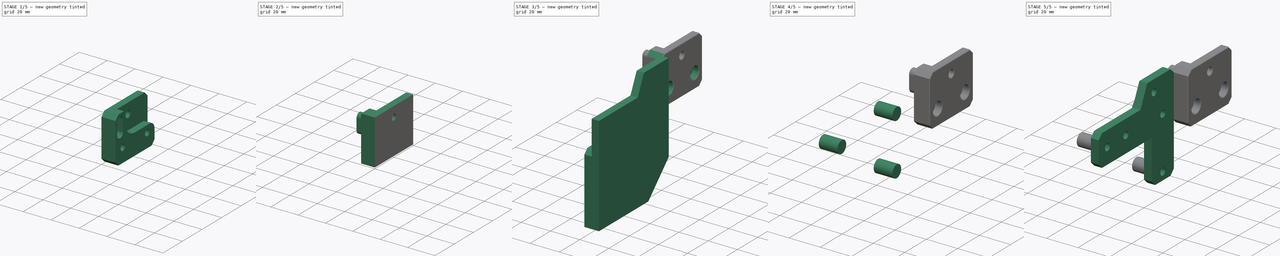
[diagram: build sequence overview — one tinted view per stage of 5, left to right]
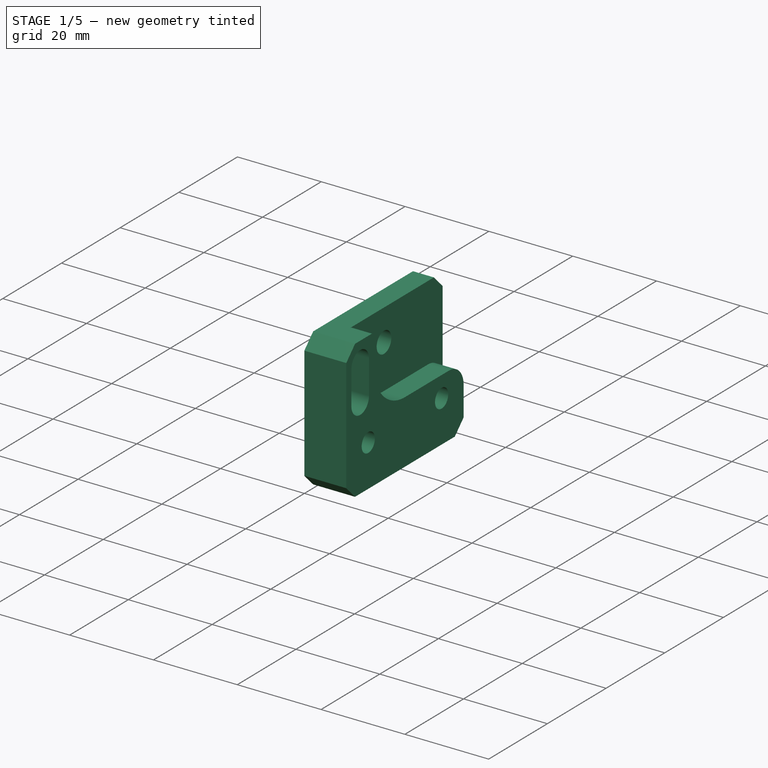
[diagram: stage 1 of 5 — iso view after this stage's code; geometry added in this stage tinted green]
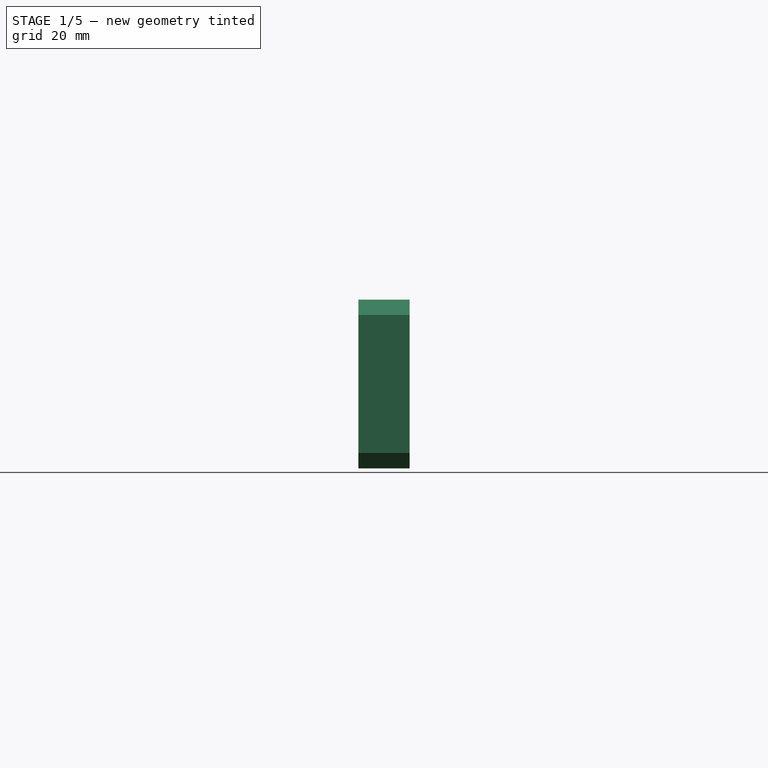
[diagram: stage 1 of 5 — front view after this stage's code; geometry added in this stage tinted green]
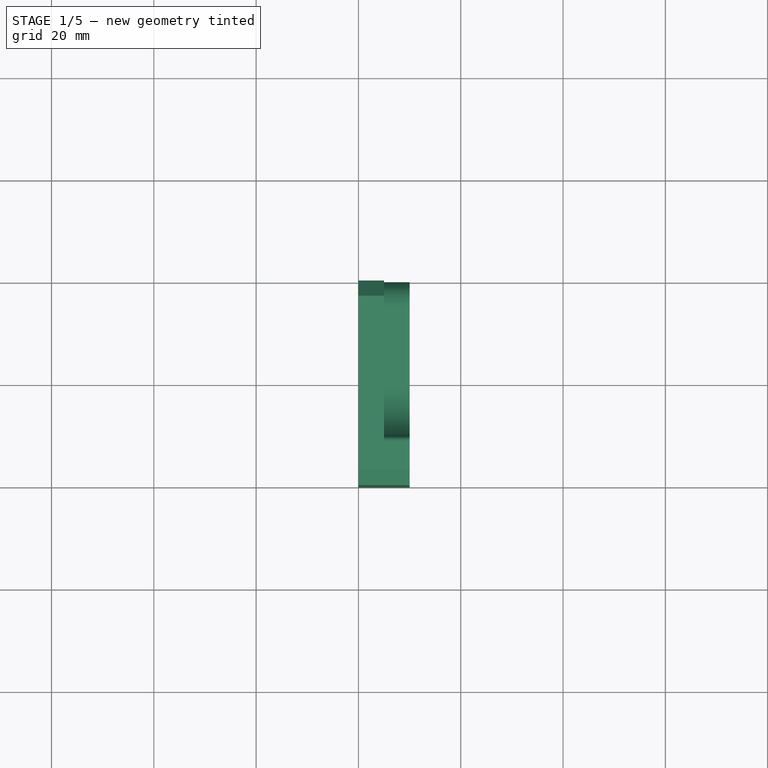
[diagram: stage 1 of 5 — top view after this stage's code; geometry added in this stage tinted green]
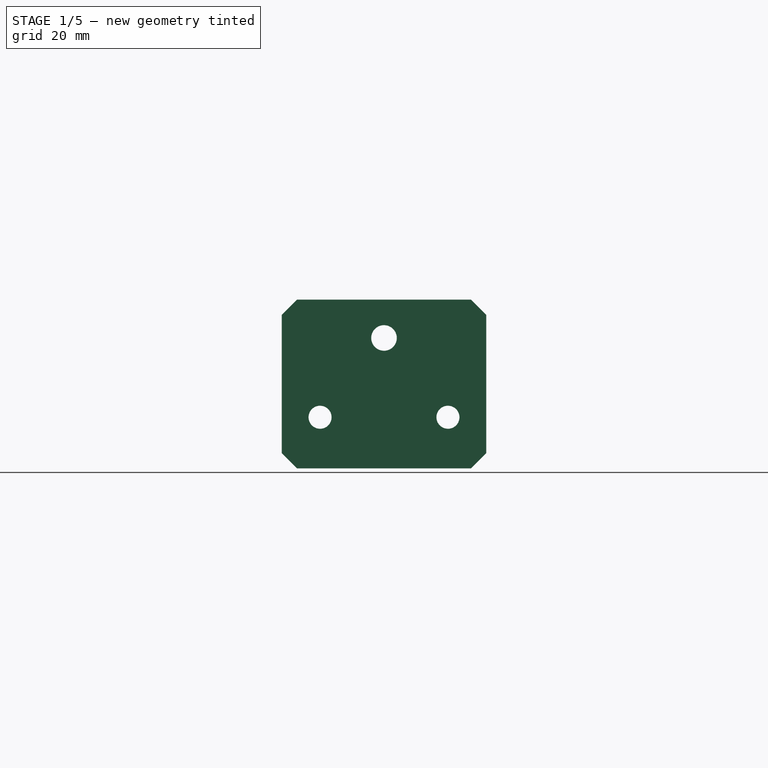
[diagram: stage 1 of 5 — right view after this stage's code; geometry added in this stage tinted green]
FCSTD DOCUMENT  (FreeCAD 2022.709R28846 (Git))
Label: YAxis
License: All rights reserved
objects: PartDesign::SubShapeBinder×11, PartDesign::Hole×10, PartDesign::Pad×9, Sketcher::SketchObject×7, PartDesign::Plane×6, PartDesign::Chamfer×6, Sketcher::SketchExport×6, PartDesign::Body×4, App::DocumentObjectGroup×3, PartDesign::Pocket×3, Spreadsheet::Sheet×1, Part::SubShapeBinder×1, PartDesign::Fillet×1
note: 122 computed .brp shape members not serialized (recipe doc carries the construction recipe); baked Part::Feature solids carry a one-line shape summary decoded from their .brp

FEATURE [App::DocumentObjectGroup] Group007  label="Front"
  ClaimAllChildren = true
  ExportMode = 1
  Group = -> [Body008,Body009]
  TreeRank = 236
  _GroupVersion = 1
FEATURE [PartDesign::Body] Body008  label="FrontInnerPlate"
  AutoGroupSolids = false
  ClaimAllChildren = false
  ExportMode = 0
  Group = -> [DatumPlane009,Sketch014,Export014,Pad015,DatumPlane010,Sketch015,Pad016,Export015,Hole013,Hole014,Export016,Binder016,Pocket,Chamfer009,Chamfer010]
  Origin = -> Origin008
  Tip = -> Chamfer010
  TreeRank = 246
  _ExportChildren = -> [DatumPlane009,Pad015,DatumPlane010,Pad016,Hole013,Hole014,Pocket,Chamfer009,Chamfer010]
  _GroupVersion = 1
FEATURE [Sketcher::SketchObject] Sketch014
  ArcFitTolerance = 1e-06
  AttachmentSupport = -> [DatumPlane009]
  Exports = -> [Export014,Export015]
  FullyConstrained = true
  MapMode = 5
  Placement = pos=(0,0,0) rot=(0.57735,0.57735,0.57735;2.0944rad)
  Support = -> [DatumPlane009]
  TreeRank = 248
  expr: Constraints[14] = <<Variables>>.Flange_Radius_Outer
  expr: Constraints[3] = <<Variables>>.Extrusion_To_Rail_Dist
  sketch-geometry (10):
    g0: GeomPoint [constr] X=0 Y=20 Z=0
    g1: GeomPoint [constr] X=0 Y=33 Z=0
    g2: LineSegment StartX=0 StartY=33 StartZ=0 EndX=40 EndY=33 EndZ=0
    g3: LineSegment StartX=40 StartY=33 StartZ=0 EndX=40 EndY=0 EndZ=0
    g4: LineSegment StartX=40 StartY=0 StartZ=0 EndX=0 EndY=0 EndZ=0
    g5: LineSegment StartX=0 StartY=0 StartZ=0 EndX=0 EndY=33 EndZ=0
    g6: Circle [constr] CenterX=20 CenterY=25.5 CenterZ=0 NormalX=0 NormalY=0 NormalZ=1 AngleXU=0 Radius=7.5
    g7: Circle [constr] CenterX=7.5 CenterY=10 CenterZ=0 NormalX=0 NormalY=0 NormalZ=1 AngleXU=0 Radius=2
    g8: Circle [constr] CenterX=32.5 CenterY=10 CenterZ=0 NormalX=0 NormalY=0 NormalZ=1 AngleXU=0 Radius=2
    g9: LineSegment [constr] StartX=20 StartY=0 StartZ=0 EndX=20 EndY=33 EndZ=0
  constraints (26):
    c: PointOnObject(g0,g-2)
    c: DistanceY(g-1,g0) = 20
    c: PointOnObject(g1,g-2)
    c: DistanceY(g0,g1) = 13
    c: Coincident(g2,g1)
    c: Horizontal(g2)
    c: Coincident(g3,g2)
    c: PointOnObject(g3,g-1)
    c: Vertical(g3)
    c: Coincident(g4,g3)
    c: Coincident(g4,g-1)
    c: Coincident(g5,g4)
    c: Coincident(g5,g2)
    c: Tangent(g6,g2)
    c: Diameter(g6) = 15
    c: Horizontal(g7,g8)
    c: Diameter(g8) = 4
    c: Equal(g8,g7)
    c: DistanceY(g3,g8) = 10
    c: DistanceX(g2,g2) = 40  'Width'
    c: PointOnObject(g9,g4)
    c: Symmetric(g2,g2,g9)
    c: PointOnObject(g6,g9)
    c: Symmetric(g7,g8,g9)
    c: DistanceX(g7,g8) = 25
    c: DistanceY(g3,g3) = 33  'Height'
FEATURE [Sketcher::SketchExport] Export014  label="BearingAxis003"
  Base = -> Sketch014
  BaseRefs = -> Sketch014 [edge7]
  Placement = pos=(0,0,0) rot=(0.57735,0.57735,0.57735;2.0944rad)
  Refs = ;g7.edge7
  SyncPlacement = true
  TreeRank = 249
FEATURE [PartDesign::Pad] Pad015
  ClaimChildren = false
  Direction = (1,1,1)
  Fit = 0
  FitJoin = 0
  InnerFit = 0
  InnerFitJoin = 0
  InnerTaperAngle = 0
  InnerTaperAngleRev = 0
  Length = 5
  Length2 = 100
  Linearize = true
  NewSolid = false
  Placement = pos=(0,0,0) rot=(0.57735,0.57735,0.57735;2.0944rad)
  Profile = -> Sketch014
  Suppress = false
  TreeRank = 251
  Type = 0
  _ProfileBasedVersion = 1
FEATURE [Sketcher::SketchObject] Sketch015
  ArcFitTolerance = 1e-06
  AttachmentSupport = -> [DatumPlane010]
  Exports = -> [Export016]
  ExternalGeometry = -> [Export014]
  FullyConstrained = true
  MapMode = 5
  Placement = pos=(5,0,1.1e-15) rot=(0.57735,0.57735,0.57735;2.0944rad)
  Support = -> [DatumPlane010]
  TreeRank = 253
  expr: Constraints[10] = <<Sketch014>>.Constraints.Height
  expr: Constraints[11] = <<Sketch014>>.Constraints.Width
  sketch-geometry (19):
    g0: LineSegment StartX=0 StartY=33 StartZ=0 EndX=0 EndY=0 EndZ=0
    g1: LineSegment StartX=0 StartY=0 StartZ=0 EndX=40 EndY=0 EndZ=0
    g2: LineSegment StartX=40 StartY=0 StartZ=0 EndX=40 EndY=10 EndZ=0
    g3: LineSegment StartX=35 StartY=15 StartZ=0 EndX=20 EndY=15 EndZ=0
    g4: LineSegment StartX=9.5 StartY=25.5 StartZ=0 EndX=9.5 EndY=32 EndZ=0
    g5: LineSegment StartX=8.5 StartY=33 StartZ=0 EndX=0 EndY=33 EndZ=0
    g6: ArcOfCircle CenterX=20 CenterY=25.5 CenterZ=0 NormalX=0 NormalY=0 NormalZ=1 AngleXU=0 Radius=10.5 StartAngle=3.14159 EndAngle=4.71239
    g7: GeomPoint [constr] X=9.5 Y=15 Z=0
    g8: LineSegment [constr] StartX=9.5 StartY=25.5 StartZ=0 EndX=20 EndY=25.5 EndZ=0
    g9: GeomPoint [constr] X=12.5 Y=25.5 Z=0
    g10: ArcOfCircle CenterX=35 CenterY=10 CenterZ=0 NormalX=0 NormalY=0 NormalZ=1 AngleXU=0 Radius=5 StartAngle=1e-16 EndAngle=1.5708
    g11: GeomPoint [constr] X=40 Y=15 Z=0
    g12: ArcOfCircle [constr] CenterX=4.75 CenterY=28 CenterZ=0 NormalX=0 NormalY=0 NormalZ=1 AngleXU=0 Radius=3 StartAngle=-7.1e-15 EndAngle=3.14159
    g13: ArcOfCircle [constr] CenterX=4.75 CenterY=20 CenterZ=0 NormalX=0 NormalY=0 NormalZ=1 AngleXU=0 Radius=3 StartAngle=3.14159 EndAngle=6.28319
    g14: LineSegment [constr] StartX=1.75 StartY=28 StartZ=0 EndX=1.75 EndY=20 EndZ=0
    g15: LineSegment [constr] StartX=7.75 StartY=28 StartZ=0 EndX=7.75 EndY=20 EndZ=0
    g16: LineSegment [constr] StartX=4.75 StartY=33 StartZ=0 EndX=4.75 EndY=20 EndZ=0
    g17: ArcOfCircle CenterX=8.5 CenterY=32 CenterZ=0 NormalX=0 NormalY=0 NormalZ=1 AngleXU=0 Radius=1 StartAngle=-9e-16 EndAngle=1.5708
    g18: GeomPoint [constr] X=9.5 Y=33 Z=0
  constraints (44):
    c: PointOnObject(g0,g-2)
    c: Coincident(g0,g-1)
    c: Coincident(g1,g0)
    c: PointOnObject(g1,g-1)
    c: Coincident(g2,g1)
    c: Vertical(g2)
    c: Horizontal(g3)
    c: Vertical(g4)
    c: Coincident(g5,g0)
    c: Horizontal(g5)
    c: DistanceY(g0,g0) = 33
    c: DistanceX(g1,g1) = 40
    c: PointOnObject(g7,g4)
    c: PointOnObject(g7,g3)
    c: Tangent(g4,g6) = 1.5708
    c: Tangent(g3,g6) = 1.5708
    c: Coincident(g6,g-3)
    c: Coincident(g8,g4)
    c: Coincident(g8,g6)
    c: PointOnObject(g9,g8)
    c: PointOnObject(g9,g-3)
    c: DistanceX(g4,g9) = 3
    c: PointOnObject(g11,g3)
    c: PointOnObject(g11,g2)
    c: Tangent(g3,g10) = -1.5708
    c: Tangent(g2,g10) = -1.5708
    c: Radius(g10) = 5
    c: Tangent(g12,g15) = 1.5708
    c: Tangent(g12,g14) = -1.5708
    c: Tangent(g14,g13) = -1.5708
    c: Tangent(g15,g13) = 1.5708
    c: Vertical(g14)
    c: Equal(g12,g13)
    c: Coincident(g16,g13)
    c: Vertical(g16)
    c: Symmetric(g0,g18,g16)
    c: Radius(g12) = 3
    c: DistanceY(g15,g15) = 8
    c: DistanceY(g12,g16) = 5
    c: PointOnObject(g18,g5)
    c: PointOnObject(g18,g4)
    c: Tangent(g5,g17) = -1.5708
    c: Tangent(g4,g17) = -1.5708
    c: Radius(g17) = 1
FEATURE [PartDesign::Pad] Pad016
  BaseFeature = -> Pad015
  ClaimChildren = false
  Direction = (1,1,1)
  Fit = 0
  FitJoin = 0
  InnerFit = 0
  InnerFitJoin = 0
  InnerTaperAngle = 0
  InnerTaperAngleRev = 0
  Length = 5
  Length2 = 100
  Linearize = true
  NewSolid = false
  Placement = pos=(0,0,0) rot=(0.57735,0.57735,0.57735;2.0944rad)
  Profile = -> Sketch015
  Suppress = false
  TreeRank = 254
  Type = 0
  _ProfileBasedVersion = 1
  expr: Length = <<Variables>>.FlangeStack_Width / 2
FEATURE [Sketcher::SketchExport] Export015  label="MountHoles004"
  Base = -> Sketch014
  BaseRefs = -> Sketch014 [edge8,edge9]
  Placement = pos=(0,0,0) rot=(0.57735,0.57735,0.57735;2.0944rad)
  Refs = ;g10.edge8 | ;g11.edge9
  SyncPlacement = true
  TreeRank = 255
FEATURE [PartDesign::Hole] Hole013
  BaseFeature = -> Pad016
  ClaimChildren = false
  CustomThreadClearance = 0
  Depth = 25
  DepthType = 0
  Diameter = 4.5
  DrillForDepth = false
  DrillPoint = 1
  DrillPointAngle = 118
  Fit = 0
  FitJoin = 0
  HoleCutCountersinkAngle = 90
  HoleCutCustomValues = false
  HoleCutDepth = 0
  HoleCutDiameter = 6.1
  HoleCutType = 0
  InnerFit = 0
  InnerFitJoin = 0
  ModelThread = false
  NewSolid = false
  Placement = pos=(0,0,0) rot=(0.57735,0.57735,0.57735;2.0944rad)
  Profile = -> Export015
  Reversed = true
  Suppress = false
  Tapered = false
  TaperedAngle = 90
  ThreadClass = 0
  ThreadDepth = 25
  ThreadDepthType = 0
  ThreadDirection = 0
  ThreadFit = 0
  ThreadSize = 11
  ThreadType = 1
  Threaded = false
  TreeRank = 256
  UseCustomThreadClearance = false
  _ProfileBasedVersion = 1
FEATURE [PartDesign::Hole] Hole014
  BaseFeature = -> Hole013
  ClaimChildren = false
  CustomThreadClearance = 0
  Depth = 18
  DepthType = 0
  Diameter = 5
  DrillForDepth = false
  DrillPoint = 0
  DrillPointAngle = 118
  Fit = 0
  FitJoin = 0
  HoleCutCountersinkAngle = 90
  HoleCutCustomValues = false
  HoleCutDepth = 2
  HoleCutDiameter = 9
  HoleCutType = 1
  InnerFit = 0
  InnerFitJoin = 0
  ModelThread = false
  NewSolid = false
  Placement = pos=(0,0,0) rot=(0.57735,0.57735,0.57735;2.0944rad)
  Profile = -> Export014
  Reversed = true
  Suppress = false
  Tapered = false
  TaperedAngle = 90
  ThreadClass = 0
  ThreadDepth = 18
  ThreadDepthType = 0
  ThreadDirection = 0
  ThreadFit = 0
  ThreadSize = 0
  ThreadType = 0
  Threaded = false
  TreeRank = 257
  UseCustomThreadClearance = false
  _ProfileBasedVersion = 1
  expr: Depth = <<Variables>>.BearingAxleDepth
  expr: Diameter = <<Variables>>.BearingAxleDia
  expr: HoleCutDepth = <<Variables>>.BearingAxleCounterboreDepth
  expr: HoleCutDiameter = <<Variables>>.BearingAxleCounterboreDia
FEATURE [Sketcher::SketchExport] Export016  label="LockingLug"
  Base = -> Sketch015
  BaseRefs = -> Sketch015 [edge13,vertex24,vertex25,vertex26,edge14,vertex27,vertex28,vertex29,vertex30,vertex31,edge15,vertex32,vertex33,edge16,vertex35]
  Placement = pos=(5,0,1.1e-15) rot=(0.57735,0.57735,0.57735;2.0944rad)
  Refs = ;g28.edge13 | ;g28v1.vertex24 | ;g28v2.vertex25 | ;g28v3.vertex26 | ;g29.edge14 | ;g29v1.vertex27 | ;g29v2.vertex28 | ;g29v3.vertex29 | ;g30v1.vertex30 | ;g30v2.vertex31 | ;g30.edge15 | ;g31v1.vertex32 | ;g31v2.vertex33 | ;g31.edge16 | ;g32v2.vertex35
  SyncPlacement = true
  TreeRank = 270
FEATURE [PartDesign::Pocket] Pocket
  BaseFeature = -> Hole014
  ClaimChildren = false
  Fit = 0.05
  FitJoin = 0
  InnerFit = 0
  InnerFitJoin = 0
  InnerTaperAngle = 0
  InnerTaperAngleRev = 0
  Length = 5
  Length2 = 100
  Linearize = true
  NewSolid = false
  Placement = pos=(0,0,0) rot=(0.57735,0.57735,0.57735;2.0944rad)
  Profile = -> Binder016
  Reversed = true
  Suppress = false
  TreeRank = 273
  Type = 0
  _ProfileBasedVersion = 1
  expr: Length = Pad016.Length
FEATURE [PartDesign::Chamfer] Chamfer009
  Angle = 45
  Base = -> Pocket [Edge1,Edge18,Edge6,Edge27,Edge29,Edge9,Edge2]
  BaseFeature = -> Pocket
  ChamferType = 0
  FlipDirection = false
  NewSolid = false
  Placement = pos=(0,0,0) rot=(0.57735,0.57735,0.57735;2.0944rad)
  Size = 3
  Size2 = 1
  SupportTransform = false
  Suppress = false
  TreeRank = 287
  expr: Size = <<Variables>>.CornerChamfer
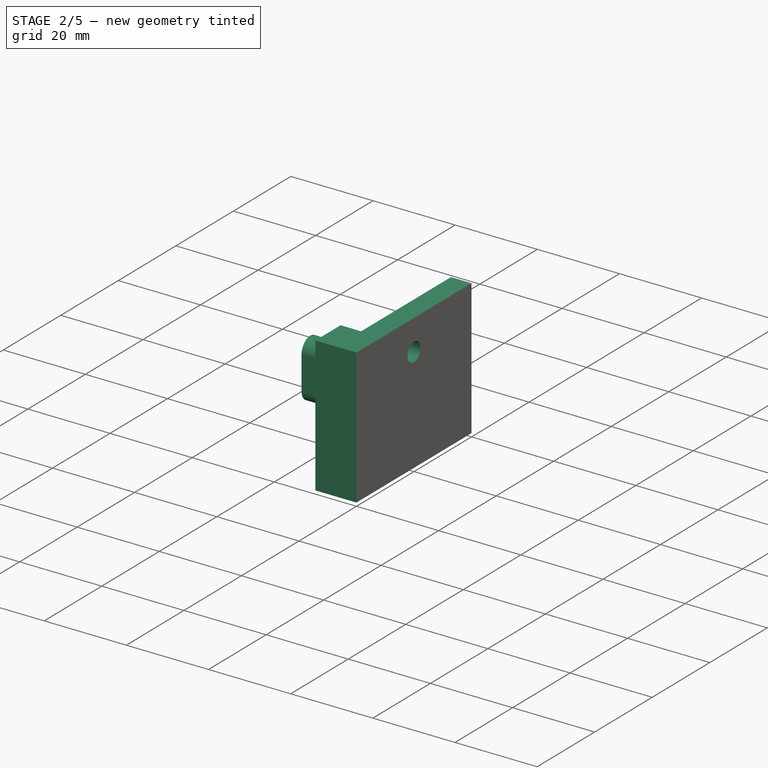
[diagram: stage 2 of 5 — iso view after this stage's code; geometry added in this stage tinted green]
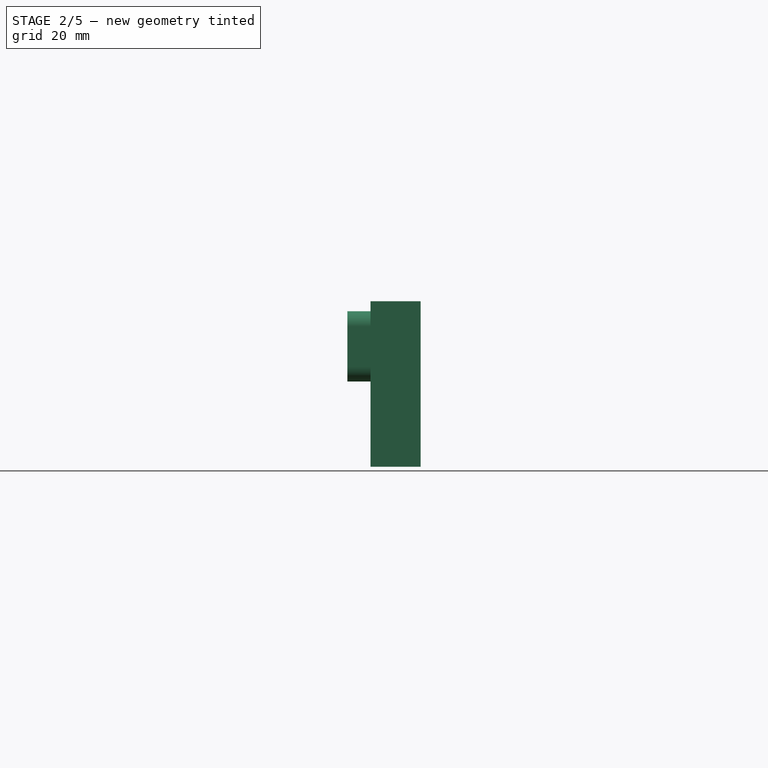
[diagram: stage 2 of 5 — front view after this stage's code; geometry added in this stage tinted green]
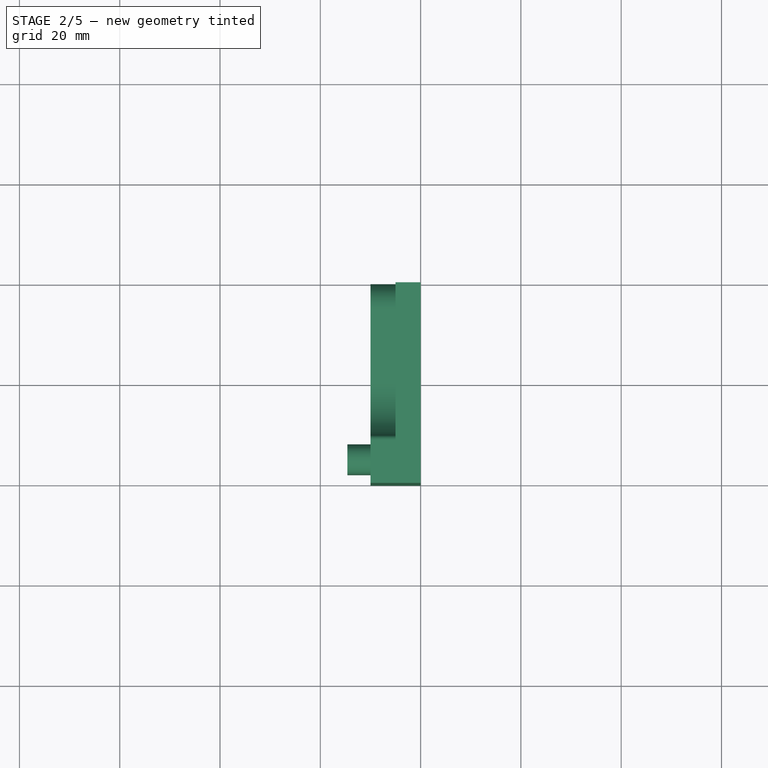
[diagram: stage 2 of 5 — top view after this stage's code; geometry added in this stage tinted green]
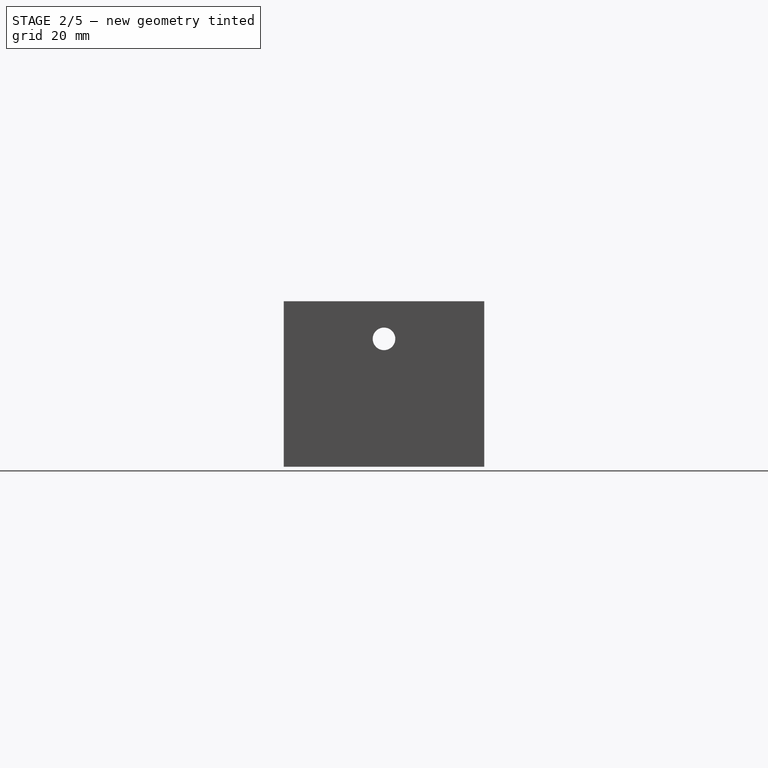
[diagram: stage 2 of 5 — right view after this stage's code; geometry added in this stage tinted green]
FEATURE [PartDesign::Plane] DatumPlane009  label="OuterFace002"
  AttachmentSupport = -> [YZ_Plane008]
  Length = 10
  MapMode = 5
  MinimumLength = 10
  MinimumWidth = 10
  Placement = pos=(0,0,0) rot=(0.57735,0.57735,0.57735;2.0944rad)
  ResizeMode = 0
  Support = -> [YZ_Plane008]
  TreeRank = 247
  Width = 10
FEATURE [PartDesign::SubShapeBinder] Import  label="Import(Sketch014)"
  BindCopyOnChange = 0
  BindMode = 0
  ClaimChildren = false
  Context = -> Group002 [Group006.Body007.Import.]
  FillStyle = 0
  Fuse = false
  MakeFace = false
  OffsetFill = false
  OffsetIntersection = false
  OffsetJoinType = 0
  OffsetOpenResult = false
  PartialLoad = false
  Relative = true
  Support = -> [Body008[Sketch014.]]
  TreeRank = 250
  _Version = 8
FEATURE [PartDesign::Body] Body007  label="OuterPlate"
  AutoGroupSolids = false
  ClaimAllChildren = false
  ExportMode = 0
  Group = -> [Binder013,Pad013,DatumPlane008,Import004,Sketch013,Pad014,Binder014,Hole010,Hole011,Binder015,Hole012,Fillet,Chamfer007,Import]
  Origin = -> Origin007
  Placement = pos=(29,0,0) rot=(0,0,1;0rad)
  Tip = -> Chamfer007
  TreeRank = 231
  _ExportChildren = -> [Pad013,DatumPlane008,Import004,Pad014,Hole010,Hole011,Hole012,Fillet,Chamfer007,Import]
  _GroupVersion = 1
FEATURE [PartDesign::Plane] DatumPlane010  label="InnerFace002"
  AttachmentOffset = pos=(0,0,5) rot=(0,0,1;0rad)
  AttachmentSupport = -> [DatumPlane009]
  Length = 40
  MapMode = 5
  MinimumLength = 10
  MinimumWidth = 10
  Placement = pos=(5,0,1.1e-15) rot=(0.57735,0.57735,0.57735;2.0944rad)
  ResizeMode = 0
  Support = -> [DatumPlane009]
  TreeRank = 252
  Width = 33
  expr: AttachmentOffset.Base.z = <<Pad015>>.Length
FEATURE [PartDesign::Plane] DatumPlane011
  Length = 10
  MapMode = 5
  MinimumLength = 10
  MinimumWidth = 10
  ResizeMode = 0
  TreeRank = 269
  Width = 10
FEATURE [PartDesign::SubShapeBinder] Binder016  label="Binder016(LockingLug)"
  BindCopyOnChange = 0
  BindMode = 0
  ClaimChildren = false
  Context = -> Group002 [Group007.Body008.Binder016.]
  FillStyle = 0
  Fuse = false
  MakeFace = true
  OffsetFill = false
  OffsetIntersection = false
  OffsetJoinType = 0
  OffsetOpenResult = false
  PartialLoad = false
  Relative = true
  Support = -> [Export016]
  TreeRank = 272
  _Version = 8
FEATURE [PartDesign::SubShapeBinder] Binder017  label="Binder017(LockingLug)"
  BindCopyOnChange = 0
  BindMode = 0
  ClaimChildren = false
  Context = -> Group002 [Group007.Body009.Binder017.]
  FillStyle = 0
  Fuse = false
  MakeFace = true
  OffsetFill = false
  OffsetIntersection = false
  OffsetJoinType = 0
  OffsetOpenResult = false
  PartialLoad = false
  Placement = pos=(0.4,0,0) rot=(0,0,1;0rad)
  Relative = true
  Support = -> [Body008[Export016.]]
  TreeRank = 274
  _Version = 8
  expr: Placement.Base.x = 0.4mm
FEATURE [PartDesign::Pad] Pad017
  ClaimChildren = false
  Direction = (1,1,1)
  Fit = 0
  FitJoin = 0
  InnerFit = 0
  InnerFitJoin = 0
  InnerTaperAngle = 0
  InnerTaperAngleRev = 0
  Length = 5
  Length2 = 100
  Linearize = true
  NewSolid = false
  Placement = pos=(0.4,0,0) rot=(0,0,1;0rad)
  Profile = -> Binder017
  Suppress = false
  TreeRank = 275
  Type = 0
  _ProfileBasedVersion = 1
  expr: Length = Pocket.Length
FEATURE [PartDesign::SubShapeBinder] Binder018  label="Binder018(Sketch015)"
  BindCopyOnChange = 0
  BindMode = 0
  ClaimChildren = false
  Context = -> Group002 [Group007.Body009.Binder018.]
  FillStyle = 0
  Fuse = false
  MakeFace = true
  OffsetFill = false
  OffsetIntersection = false
  OffsetJoinType = 0
  OffsetOpenResult = false
  PartialLoad = false
  Placement = pos=(5,0,0) rot=(0,0,1;0rad)
  Relative = true
  Support = -> [Body008[Sketch015.]]
  TreeRank = 276
  _Version = 8
  expr: Placement.Base.x = Pad016.Length
FEATURE [PartDesign::Pad] Pad018
  BaseFeature = -> Pad017
  ClaimChildren = false
  Direction = (1,1,1)
  Fit = 0
  FitJoin = 0
  InnerFit = 0
  InnerFitJoin = 0
  InnerTaperAngle = 0
  InnerTaperAngleRev = 0
  Length = 5
  Length2 = 100
  Linearize = true
  NewSolid = false
  Placement = pos=(0.4,0,0) rot=(0,0,1;0rad)
  Profile = -> Binder018
  Suppress = false
  TreeRank = 277
  Type = 0
  _ProfileBasedVersion = 1
  expr: Length = <<Variables>>.FlangeStack_Width / 2
FEATURE [PartDesign::SubShapeBinder] Binder019  label="Binder019(Sketch014)"
  BindCopyOnChange = 0
  BindMode = 0
  ClaimChildren = false
  Context = -> Group002 [Group007.Body009.Binder019.]
  FillStyle = 0
  Fuse = false
  MakeFace = true
  OffsetFill = false
  OffsetIntersection = false
  OffsetJoinType = 0
  OffsetOpenResult = false
  PartialLoad = false
  Placement = pos=(15,0,0) rot=(0,0,1;0rad)
  Relative = true
  Support = -> [Body008[Sketch014.]]
  TreeRank = 278
  _Version = 8
  expr: Placement.Base.x = <<Variables>>.FlangeStack_Width + <<Pad015>>.Length
FEATURE [PartDesign::Pad] Pad019
  BaseFeature = -> Pad018
  ClaimChildren = false
  Direction = (1,1,1)
  Fit = 0
  FitJoin = 0
  InnerFit = 0
  InnerFitJoin = 0
  InnerTaperAngle = 0
  InnerTaperAngleRev = 0
  Length = 5
  Length2 = 100
  Linearize = true
  NewSolid = false
  Placement = pos=(0.4,0,0) rot=(0,0,1;0rad)
  Profile = -> Binder019
  Suppress = false
  TreeRank = 279
  Type = 0
  _ProfileBasedVersion = 1
FEATURE [PartDesign::SubShapeBinder] Import005  label="Import005(BearingAxis003)"
  BindCopyOnChange = 0
  BindMode = 0
  ClaimChildren = false
  Context = -> Group002 [Group007.Body009.Import005.]
  FillStyle = 0
  Fuse = false
  MakeFace = false
  OffsetFill = false
  OffsetIntersection = false
  OffsetJoinType = 0
  OffsetOpenResult = false
  PartialLoad = false
  Relative = true
  Support = -> [Body008[Export014.]]
  TreeRank = 280
  _Version = 8
FEATURE [PartDesign::Hole] Hole015
  BaseFeature = -> Pad019
  ClaimChildren = false
  CustomThreadClearance = 0
  Depth = 18
  DepthType = 0
  Diameter = 5
  DrillForDepth = false
  DrillPoint = 0
  DrillPointAngle = 118
  Fit = 0
  FitJoin = 0
  HoleCutCountersinkAngle = 90
  HoleCutCustomValues = false
  HoleCutDepth = 0
  HoleCutDiameter = 6.1
  HoleCutType = 0
  InnerFit = 0
  InnerFitJoin = 0
  ModelThread = false
  NewSolid = false
  Placement = pos=(0.4,0,0) rot=(0,0,1;0rad)
  Profile = -> Import005
  Reversed = true
  Suppress = false
  Tapered = false
  TaperedAngle = 90
  ThreadClass = 0
  ThreadDepth = 18
  ThreadDepthType = 0
  ThreadDirection = 0
  ThreadFit = 0
  ThreadSize = 0
  ThreadType = 0
  Threaded = false
  TreeRank = 281
  UseCustomThreadClearance = false
  _ProfileBasedVersion = 1
  expr: Depth = <<Variables>>.BearingAxleDepth
  expr: Diameter = <<Variables>>.BearingAxleDia
FEATURE [PartDesign::Hole] Hole016
  BaseFeature = -> Hole015
  ClaimChildren = false
  CustomThreadClearance = 0
  Depth = 25
  DepthType = 1
  Diameter = 4.5
  DrillForDepth = false
  DrillPoint = 1
  DrillPointAngle = 118
  Fit = 0
  FitJoin = 0
  HoleCutCountersinkAngle = 90
  HoleCutCustomValues = false
  HoleCutDepth = 0
  HoleCutDiameter = 6.1
  HoleCutType = 0
  InnerFit = 0
  InnerFitJoin = 0
  ModelThread = false
  NewSolid = false
  Placement = pos=(0.4,0,0) rot=(0,0,1;0rad)
  Profile = -> Import005
  Reversed = true
  Suppress = false
  Tapered = false
  TaperedAngle = 90
  ThreadClass = 0
  ThreadDepth = 112.269
  ThreadDepthType = 0
  ThreadDirection = 0
  ThreadFit = 0
  ThreadSize = 11
  ThreadType = 1
  Threaded = false
  TreeRank = 282
  UseCustomThreadClearance = false
  _ProfileBasedVersion = 1
FEATURE [PartDesign::Chamfer] Chamfer010
  Angle = 45
  Base = -> Chamfer009 [Edge42,Edge40,Edge60,Edge5,Edge19,Edge24,Face2]
  BaseFeature = -> Chamfer009
  ChamferType = 0
  FlipDirection = false
  NewSolid = false
  Placement = pos=(0,0,0) rot=(0.57735,0.57735,0.57735;2.0944rad)
  Size = 0.4
  Size2 = 1
  SupportTransform = false
  Suppress = false
  TreeRank = 288
  expr: Size = <<Variables>>.FinishingChamfer
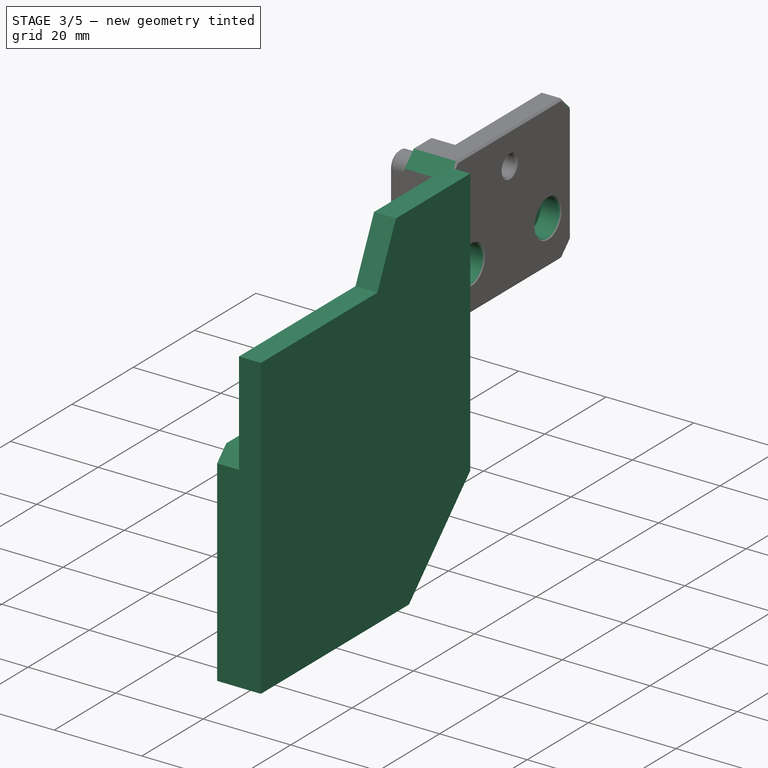
[diagram: stage 3 of 5 — iso view after this stage's code; geometry added in this stage tinted green]
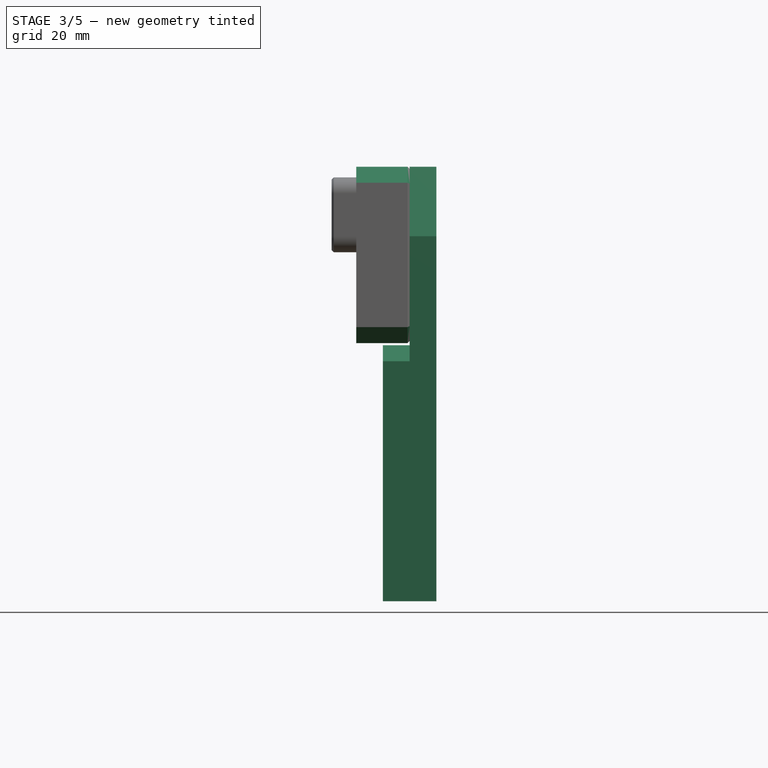
[diagram: stage 3 of 5 — front view after this stage's code; geometry added in this stage tinted green]
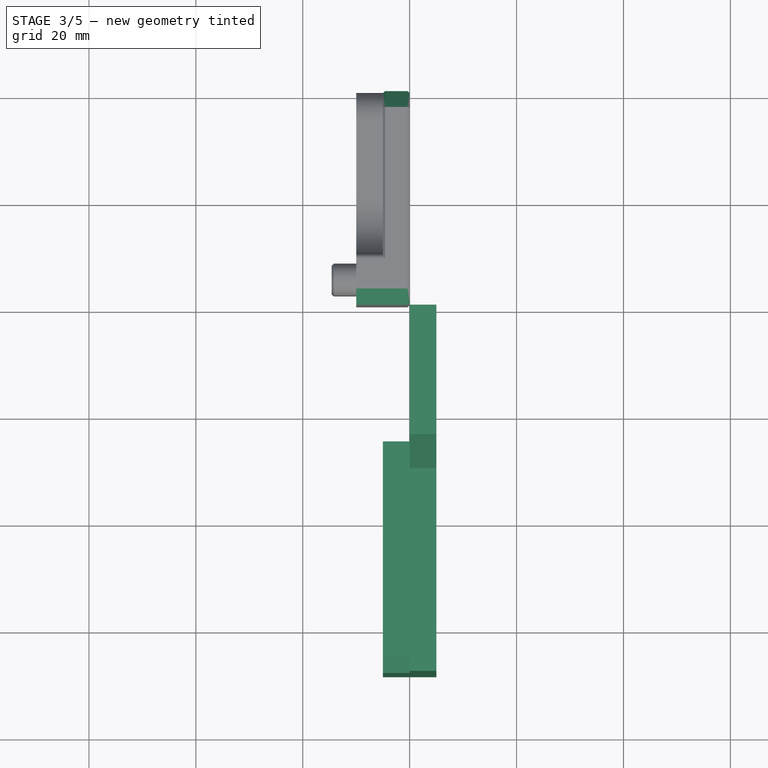
[diagram: stage 3 of 5 — top view after this stage's code; geometry added in this stage tinted green]
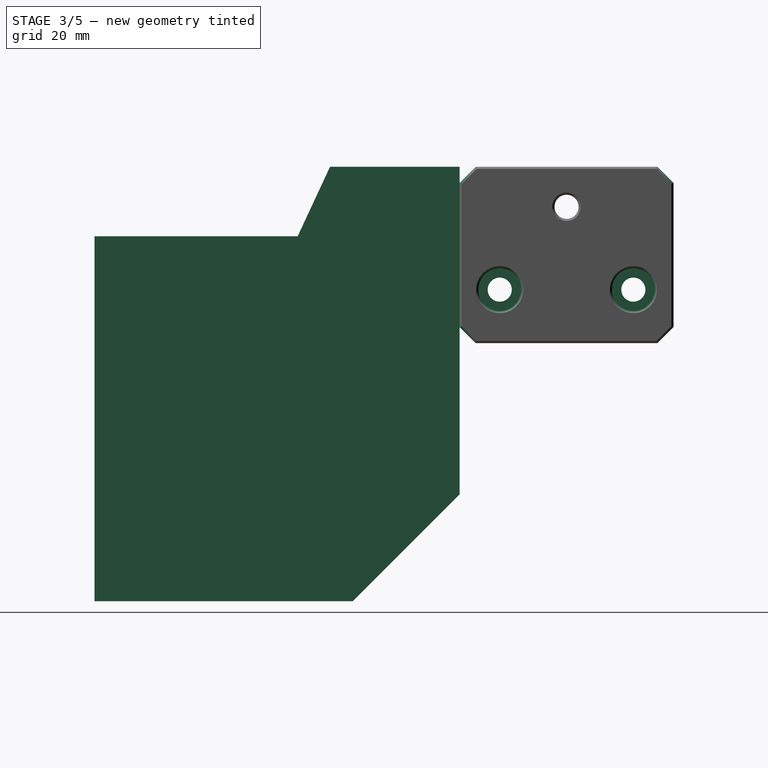
[diagram: stage 3 of 5 — right view after this stage's code; geometry added in this stage tinted green]
FEATURE [PartDesign::SubShapeBinder] Binder020  label="Binder020(MountHoles004)"
  BindCopyOnChange = 0
  BindMode = 0
  ClaimChildren = false
  Context = -> Group002 [Group007.Body009.Binder020.]
  FillStyle = 0
  Fuse = false
  MakeFace = true
  OffsetFill = false
  OffsetIntersection = false
  OffsetJoinType = 0
  OffsetOpenResult = false
  PartialLoad = false
  Placement = pos=(20,0,0) rot=(0,0,1;0rad)
  Relative = true
  Support = -> [Body008[Export015.]]
  TreeRank = 283
  _Version = 8
  expr: Placement.Base.x = 20mm
FEATURE [PartDesign::Hole] Hole
  BaseFeature = -> Hole016
  ClaimChildren = false
  CustomThreadClearance = 0
  Depth = 25
  DepthType = 0
  Diameter = 4.5
  DrillForDepth = false
  DrillPoint = 1
  DrillPointAngle = 118
  Fit = 0
  FitJoin = 0
  HoleCutCountersinkAngle = 90
  HoleCutCustomValues = false
  HoleCutDepth = 4.4
  HoleCutDiameter = 8
  HoleCutType = 11
  InnerFit = 0
  InnerFitJoin = 0
  ModelThread = false
  NewSolid = false
  Placement = pos=(0.4,0,0) rot=(0,0,1;0rad)
  Profile = -> Binder020
  Suppress = false
  Tapered = false
  TaperedAngle = 90
  ThreadClass = 0
  ThreadDepth = 25
  ThreadDepthType = 0
  ThreadDirection = 0
  ThreadFit = 0
  ThreadSize = 11
  ThreadType = 1
  Threaded = false
  TreeRank = 284
  UseCustomThreadClearance = false
  _ProfileBasedVersion = 1
FEATURE [PartDesign::Chamfer] Chamfer
  Angle = 45
  Base = -> Hole [Edge49,Edge33,Edge52,Edge37,Edge50,Edge54,Edge39]
  BaseFeature = -> Hole
  ChamferType = 0
  FlipDirection = false
  NewSolid = false
  Placement = pos=(0.4,0,0) rot=(0,0,1;0rad)
  Size = 3
  Size2 = 1
  SupportTransform = false
  Suppress = false
  TreeRank = 285
  expr: Size = <<Variables>>.CornerChamfer
FEATURE [PartDesign::Chamfer] Chamfer008
  Angle = 45
  Base = -> Chamfer [Face31,Edge63,Edge13,Edge14,Edge62,Edge56,Edge61,Edge54]
  BaseFeature = -> Chamfer
  ChamferType = 0
  FlipDirection = false
  NewSolid = false
  Placement = pos=(0.4,0,0) rot=(0,0,1;0rad)
  Size = 0.4
  Size2 = 1
  SupportTransform = false
  Suppress = false
  TreeRank = 286
  expr: Size = <<Variables>>.FinishingChamfer
FEATURE [PartDesign::Body] Body009  label="FrontOuterPlate"
  AutoGroupSolids = false
  ClaimAllChildren = false
  ExportMode = 0
  Group = -> [DatumPlane011,Binder017,Pad017,Binder018,Pad018,Binder019,Pad019,Import005,Hole015,Hole016,Binder020,Hole,Chamfer,Chamfer008]
  Origin = -> Origin009
  Placement = pos=(20,0,0) rot=(0,0,1;0rad)
  Tip = -> Chamfer008
  TreeRank = 268
  _ExportChildren = -> [DatumPlane011,Pad017,Pad018,Pad019,Hole015,Hole016,Hole,Chamfer,Chamfer008]
  _GroupVersion = 1
FEATURE [App::DocumentObjectGroup] Group002  label="Y Axis"
  ClaimAllChildren = true
  ExportMode = 1
  Group = -> [Group006,Group007]
  TreeRank = 10
  _GroupVersion = 1
FEATURE [App::DocumentObjectGroup] Group006  label="Rear"
  ClaimAllChildren = true
  ExportMode = 1
  Group = -> [Body006,Body007]
  TreeRank = 156
  _GroupVersion = 1
FEATURE [PartDesign::Body] Body006  label="InnerPlate"
  AutoGroupSolids = false
  ClaimAllChildren = false
  ExportMode = 0
  Group = -> [DatumPlane006,Sketch009,DatumPlane007,Pad011,Export011,Export012,Sketch010,Sketch011,Pad012,Pocket001,Binder012,Hole008,Export013,Sketch012,Pocket002,Hole009,Chamfer005]
  Origin = -> Origin006
  Tip = -> Chamfer005
  TreeRank = 166
  _ExportChildren = -> [DatumPlane006,DatumPlane007,Pad011,Pad012,Pocket001,Hole008,Pocket002,Hole009,Chamfer005]
  _GroupVersion = 1
FEATURE [Sketcher::SketchObject] Sketch009  label="S_BasePlate"
  ArcFitTolerance = 1e-06
  AttachmentSupport = -> [DatumPlane006]
  Exports = -> [Export011,Export012,Export013]
  FullyConstrained = true
  MapMode = 5
  Placement = pos=(0,0,0) rot=(0.57735,0.57735,0.57735;2.0944rad)
  Support = -> [DatumPlane006]
  TreeRank = 168
  expr: Constraints[0] = Spreadsheet.Flange_Radius_Inner
  expr: Constraints[4] = Spreadsheet.Flange_Radius_Outer
  sketch-geometry (28):
    g0: Circle [constr] CenterX=-18 CenterY=25.5 CenterZ=0 NormalX=0 NormalY=0 NormalZ=1 AngleXU=0 Radius=6.5
    g1: Circle [constr] CenterX=-43.4964 CenterY=10.5 CenterZ=0 NormalX=0 NormalY=0 NormalZ=1 AngleXU=0 Radius=6.5
    g2: Circle [constr] CenterX=-43.4964 CenterY=10.5 CenterZ=0 NormalX=0 NormalY=0 NormalZ=1 AngleXU=0 Radius=7.5
    g3: Circle [constr] CenterX=-18 CenterY=25.5 CenterZ=0 NormalX=0 NormalY=0 NormalZ=1 AngleXU=0 Radius=7.5
    g4: LineSegment [constr] StartX=-43.4964 StartY=18 StartZ=0 EndX=-18 EndY=18 EndZ=0
    g5: Circle [constr] CenterX=-46.65 CenterY=-21.65 CenterZ=0 NormalX=0 NormalY=0 NormalZ=1 AngleXU=0 Radius=6.5
    g6: LineSegment [constr] StartX=-37.0869 StartY=6.60536 StartZ=0 EndX=-52.2049 EndY=-18.2746 EndZ=0
    g7: LineSegment [constr] StartX=-41.0951 StartY=-25.0254 StartZ=0 EndX=-12.4451 EndY=22.1246 EndZ=0
    g8: LineSegment StartX=-68.3 StartY=20 StartZ=0 EndX=-68.3 EndY=-48.3 EndZ=0
    g9: LineSegment StartX=-24.238 StartY=33 StartZ=0 EndX=0 EndY=33 EndZ=0
    g10: LineSegment StartX=0 StartY=33 StartZ=0 EndX=0 EndY=-28.3 EndZ=0
    g11: GeomPoint [constr] X=-68.3 Y=0 Z=0
    g12: GeomPoint [constr] X=0 Y=-48.3 Z=0
    g13: LineSegment StartX=-20 StartY=-48.3 StartZ=0 EndX=0 EndY=-28.3 EndZ=0
    g14: LineSegment [constr] StartX=-20 StartY=-48.3 StartZ=0 EndX=0 EndY=-48.3 EndZ=0
    g15: LineSegment [constr] StartX=0 StartY=-48.3 StartZ=0 EndX=0 EndY=-28.3 EndZ=0
    g16: LineSegment StartX=-68.3 StartY=20 StartZ=0 EndX=-30.3 EndY=20 EndZ=0
    g17: LineSegment StartX=-30.3 StartY=20 StartZ=0 EndX=-24.238 EndY=33 EndZ=0
    g18: LineSegment StartX=-68.3 StartY=-48.3 StartZ=0 EndX=-20 EndY=-48.3 EndZ=0
    g19: LineSegment [constr] StartX=-67.8 StartY=-0.5 StartZ=0 EndX=-25.5 EndY=-0.5 EndZ=0
    g20: LineSegment [constr] StartX=-25.5 StartY=-0.5 StartZ=0 EndX=-25.5 EndY=-42.8 EndZ=0
    g21: LineSegment [constr] StartX=-25.5 StartY=-42.8 StartZ=0 EndX=-67.8 EndY=-42.8 EndZ=0
    g22: LineSegment [constr] StartX=-67.8 StartY=-42.8 StartZ=0 EndX=-67.8 EndY=-0.5 EndZ=0
    g23: LineSegment [constr] StartX=-67.8 StartY=-0.5 StartZ=0 EndX=-25.5 EndY=-42.8 EndZ=0
    g24: LineSegment [constr] StartX=-67.8 StartY=-42.8 StartZ=0 EndX=-25.5 EndY=-0.5 EndZ=0
    g25: Circle [constr] CenterX=-60.3 CenterY=10 CenterZ=0 NormalX=0 NormalY=0 NormalZ=1 AngleXU=0 Radius=4
    g26: Circle [constr] CenterX=-10 CenterY=10 CenterZ=0 NormalX=0 NormalY=0 NormalZ=1 AngleXU=0 Radius=4
    g27: Circle [constr] CenterX=-10 CenterY=-23.3 CenterZ=0 NormalX=0 NormalY=0 NormalZ=1 AngleXU=0 Radius=4
  constraints (82):
    c: Diameter(g0) = 13
    c: Equal(g0,g1)
    c: Coincident(g2,g1)
    c: Coincident(g3,g0)
    c: Diameter(g3) = 15
    c: Equal(g2,g3)
    c: PointOnObject(g4,g2)
    c: PointOnObject(g4,g3)
    c: Horizontal(g4)
    c: Tangent(g4,g2)
    c: Tangent(g4,g3)
    c: PointOnObject(g6,g2)
    c: Tangent(g6,g5)
    c: Tangent(g6,g2)
    c: PointOnObject(g7,g5)
    c: PointOnObject(g7,g0)
    c: Tangent(g7,g5)
    c: Diameter(g5) = 13
    c: PointOnObject(g6,g5)
    c: Parallel(g6,g7)
    c: Tangent(g7,g0)
    c: Vertical(g8)
    c: PointOnObject(g12,g-2)
    c: PointOnObject(g9,g-2)
    c: Horizontal(g9)
    c: Coincident(g9,g10)
    c: DistanceY(g-1,g9) = 33  'Z_Rise'
    c: PointOnObject(g11,g8)
    c: PointOnObject(g11,g-1)
    c: DistanceX(g0,g9) = 18
    c: DistanceY(g12,g-1) = 48.3  'Z_Drop'
    c: PointOnObject(g12,g10)
    c: Coincident(g13,g10)
    c: Coincident(g14,g12)
    c: Coincident(g15,g12)
    c: Coincident(g15,g10)
    c: Equal(g15,g14)
    c: DistanceY(g15,g15) = 20
    c: DistanceY(g12,g9) = 81.3  'Height'
    c: Horizontal(g16)
    c: Coincident(g17,g16)
    c: Coincident(g8,g16)
    c: Coincident(g9,g17)
    c: DistanceY(g11,g8) = 20
    c: Angle(g17,g16) = 2.00713  'StepAngle'
    c: Coincident(g18,g8)
    c: Coincident(g18,g13)
    c: Horizontal(g18)
    c: Coincident(g19,g20)
    c: Coincident(g20,g21)
    c: Coincident(g21,g22)
    c: Coincident(g22,g19)
    c: Horizontal(g19)
    c: Horizontal(g21)
    c: Vertical(g20)
    c: Vertical(g22)
    c: Equal(g19,g22)
    c: Coincident(g23,g19)
    c: Coincident(g23,g20)
    c: Coincident(g24,g21)
    c: Coincident(g24,g19)
    c: PointOnObject(g5,g23)
    c: PointOnObject(g5,g24)
    c: DistanceX(g21,g21) = 42.3
    c: DistanceX(g20,g13) = 5.5
    c: Coincident(g13,g14)
    c: Horizontal(g14)
    c: DistanceY(g19,g11) = 0.5
    c: DistanceX(g8,g21) = 0.5
    c: DistanceY(g8,g21) = 5.5
    c: DistanceX(g8,g25) = 8
    c: DistanceX(g27,g10) = 10
    c: Equal(g27,g26)
    c: Equal(g26,g25)
    c: Vertical(g26,g27)
    c: DistanceY(g11,g25) = 10
    c: Horizontal(g26,g25)
    c: Diameter(g26) = 8
    c: DistanceY(g10,g27) = 5
    c: DistanceX(g8,g16) = 38  'StepIn'
    c: DistanceX(g8,g9) = 68.3  'Width'
    c: Tangent(g3,g9)
FEATURE [PartDesign::Pad] Pad011  label="Pad_Base001"
  ClaimChildren = false
  Direction = (1,1,1)
  Fit = 0
  FitJoin = 0
  InnerFit = 0
  InnerFitJoin = 0
  InnerTaperAngle = 0
  InnerTaperAngleRev = 0
  Length = 5
  Length2 = 100
  Linearize = true
  NewSolid = false
  Placement = pos=(0,0,0) rot=(0.57735,0.57735,0.57735;2.0944rad)
  Profile = -> Sketch009
  Suppress = false
  TreeRank = 169
  Type = 0
  _ProfileBasedVersion = 1
FEATURE [Sketcher::SketchExport] Export011  label="BearingAxis002"
  Base = -> Sketch009
  BaseRefs = -> Sketch009 [edge2,edge1]
  Placement = pos=(0,0,0) rot=(0.57735,0.57735,0.57735;2.0944rad)
  Refs = ;g2.edge2 | ;g1.edge1
  SyncPlacement = true
  TreeRank = 170
FEATURE [Sketcher::SketchExport] Export012  label="StepperAxis"
  Base = -> Sketch009
  BaseRefs = -> Sketch009 [edge6]
  Placement = pos=(0,0,0) rot=(0.57735,0.57735,0.57735;2.0944rad)
  Refs = ;g13.edge6
  SyncPlacement = true
  TreeRank = 171
FEATURE [Sketcher::SketchObject] Sketch010  label="S_NemaPocket"
  ArcFitTolerance = 1e-06
  AttachmentSupport = -> [DatumPlane007]
  ExternalGeometry = -> [Export012]
  FullyConstrained = true
  MapMode = 5
  Placement = pos=(5,-6e-16,6e-16) rot=(0.57735,0.57735,0.57735;2.0944rad)
  Support = -> [DatumPlane007]
  TreeRank = 172
  sketch-geometry (31):
    g0: ArcOfCircle CenterX=-46.65 CenterY=-21.65 CenterZ=0 NormalX=0 NormalY=0 NormalZ=1 AngleXU=0 Radius=11.25 StartAngle=0 EndAngle=3.14159
    g1: ArcOfCircle CenterX=-46.65 CenterY=-26.65 CenterZ=0 NormalX=0 NormalY=0 NormalZ=1 AngleXU=0 Radius=11.25 StartAngle=3.14159 EndAngle=4.36587
    g2: LineSegment StartX=-57.9 StartY=-21.65 StartZ=0 EndX=-57.9 EndY=-26.65 EndZ=0
    g3: LineSegment StartX=-35.4 StartY=-21.65 StartZ=0 EndX=-35.4 EndY=-26.65 EndZ=0
    g4: ArcOfCircle CenterX=-62.15 CenterY=-6.15 CenterZ=0 NormalX=0 NormalY=0 NormalZ=1 AngleXU=0 Radius=1.55 StartAngle=3e-16 EndAngle=3.14159
    g5: ArcOfCircle CenterX=-62.15 CenterY=-11.15 CenterZ=0 NormalX=0 NormalY=0 NormalZ=1 AngleXU=0 Radius=1.55 StartAngle=3.14159 EndAngle=6.28319
    g6: LineSegment StartX=-63.7 StartY=-6.15 StartZ=0 EndX=-63.7 EndY=-11.15 EndZ=0
    g7: LineSegment StartX=-60.6 StartY=-6.15 StartZ=0 EndX=-60.6 EndY=-11.15 EndZ=0
    g8: ArcOfCircle CenterX=-62.15 CenterY=-42.15 CenterZ=0 NormalX=0 NormalY=0 NormalZ=1 AngleXU=0 Radius=1.55 StartAngle=3.14159 EndAngle=6.28319
    g9: ArcOfCircle CenterX=-62.15 CenterY=-37.15 CenterZ=0 NormalX=0 NormalY=0 NormalZ=1 AngleXU=0 Radius=1.55 StartAngle=-9e-16 EndAngle=3.14159
    g10: LineSegment StartX=-60.6 StartY=-42.15 StartZ=0 EndX=-60.6 EndY=-37.15 EndZ=0
    g11: LineSegment StartX=-63.7 StartY=-42.15 StartZ=0 EndX=-63.7 EndY=-37.15 EndZ=0
    g12: ArcOfCircle CenterX=-31.15 CenterY=-42.15 CenterZ=0 NormalX=0 NormalY=0 NormalZ=1 AngleXU=0 Radius=1.55 StartAngle=3.14159 EndAngle=6.28319
    g13: ArcOfCircle CenterX=-31.15 CenterY=-37.15 CenterZ=0 NormalX=0 NormalY=0 NormalZ=1 AngleXU=0 Radius=1.55 StartAngle=1e-16 EndAngle=3.14159
    g14: LineSegment StartX=-29.6 StartY=-42.15 StartZ=0 EndX=-29.6 EndY=-37.15 EndZ=0
    g15: LineSegment StartX=-32.7 StartY=-42.15 StartZ=0 EndX=-32.7 EndY=-37.15 EndZ=0
    g16: ArcOfCircle CenterX=-31.15 CenterY=-11.15 CenterZ=0 NormalX=0 NormalY=0 NormalZ=1 AngleXU=0 Radius=1.55 StartAngle=3.14159 EndAngle=6.28319
    g17: ArcOfCircle CenterX=-31.15 CenterY=-6.15 CenterZ=0 NormalX=0 NormalY=0 NormalZ=1 AngleXU=0 Radius=1.55 StartAngle=2e-16 EndAngle=3.14159
    g18: LineSegment StartX=-29.6 StartY=-11.15 StartZ=0 EndX=-29.6 EndY=-6.15 EndZ=0
    g19: LineSegment StartX=-32.7 StartY=-11.15 StartZ=0 EndX=-32.7 EndY=-6.15 EndZ=0
    g20: LineSegment [constr] StartX=-62.15 StartY=-6.15 StartZ=0 EndX=-31.15 EndY=-6.15 EndZ=0
    g21: LineSegment [constr] StartX=-31.15 StartY=-6.15 StartZ=0 EndX=-31.15 EndY=-37.15 EndZ=0
    g22: LineSegment [constr] StartX=-31.15 StartY=-37.15 StartZ=0 EndX=-62.15 EndY=-37.15 EndZ=0
    g23: LineSegment [constr] StartX=-62.15 StartY=-37.15 StartZ=0 EndX=-62.15 EndY=-6.15 EndZ=0
    g24: LineSegment StartX=-44.15 StartY=-39.1124 StartZ=0 EndX=-44.15 EndY=-54.1124 EndZ=0
    g25: LineSegment StartX=-44.15 StartY=-54.1124 StartZ=0 EndX=-49.15 EndY=-54.1124 EndZ=0
    g26: LineSegment StartX=-49.15 StartY=-54.1124 StartZ=0 EndX=-49.15 EndY=-39.1124 EndZ=0
    g27: ArcOfCircle CenterX=-46.65 CenterY=-26.65 CenterZ=0 NormalX=0 NormalY=0 NormalZ=1 AngleXU=0 Radius=11.25 StartAngle=5.0589 EndAngle=6.28319
    g28: LineSegment [constr] StartX=-46.65 StartY=-26.65 StartZ=0 EndX=-46.65 EndY=-54.1124 EndZ=0
    g29: ArcOfCircle CenterX=-51.15 CenterY=-39.1124 CenterZ=0 NormalX=0 NormalY=0 NormalZ=1 AngleXU=0 Radius=2 StartAngle=-9e-16 EndAngle=1.22428
    g30: ArcOfCircle CenterX=-42.15 CenterY=-39.1124 CenterZ=0 NormalX=0 NormalY=0 NormalZ=1 AngleXU=0 Radius=2 StartAngle=1.91731 EndAngle=3.14159
  constraints (76):
    c: Tangent(g0,g3) = 1.5708
    c: Tangent(g0,g2) = -1.5708
    c: Tangent(g2,g1) = -1.5708
    c: Coincident(g3,g27) = 1.5708
    c: Vertical(g2)
    c: Equal(g0,g1)
    c: Coincident(g0,g-3)
    c: Diameter(g0) = 22.5
    c: DistanceY(g3,g3) = 5
    c: Tangent(g4,g7) = 1.5708
    c: Tangent(g4,g6) = -1.5708
    c: Tangent(g6,g5) = -1.5708
    c: Tangent(g7,g5) = 1.5708
    c: Vertical(g6)
    c: Equal(g4,g5)
    c: Tangent(g8,g11) = 1.5708
    c: Tangent(g8,g10) = -1.5708
    c: Tangent(g10,g9) = -1.5708
    c: Tangent(g11,g9) = 1.5708
    c: Vertical(g10)
    c: Equal(g8,g9)
    c: Tangent(g12,g15) = 1.5708
    c: Tangent(g12,g14) = -1.5708
    c: Tangent(g14,g13) = -1.5708
    c: Tangent(g15,g13) = 1.5708
    c: Vertical(g14)
    c: Equal(g12,g13)
    c: Tangent(g16,g19) = 1.5708
    c: Tangent(g16,g18) = -1.5708
    c: Tangent(g18,g17) = -1.5708
    c: Tangent(g19,g17) = 1.5708
    c: Vertical(g18)
    c: Equal(g16,g17)
    c: Coincident(g20,g21)
    c: Coincident(g21,g22)
    c: Coincident(g22,g23)
    c: Coincident(g23,g20)
    c: Horizontal(g20)
    c: Horizontal(g22)
    c: Vertical(g21)
    c: Vertical(g23)
    c: Coincident(g20,g4)
    c: Coincident(g21,g13)
    c: Coincident(g9,g22)
    c: Coincident(g17,g20)
    c: Equal(g17,g4)
    c: Equal(g4,g9)
    c: Equal(g9,g13)
    c: Equal(g14,g3)
    c: Equal(g3,g18)
    c: Equal(g18,g7)
    c: Equal(g7,g10)
    c: Diameter(g13) = 3.1
    c: Equal(g20,g23)
    c: DistanceX(g20,g20) = 31
    c: Symmetric(g4,g13,g0)
    c: Coincident(g24,g25)
    c: Coincident(g25,g26)
    c: Horizontal(g25)
    c: Vertical(g24)
    c: Vertical(g26)
    c: Equal(g1,g27)
    c: Coincident(g1,g27)
    c: Coincident(g28,g1)
    c: PointOnObject(g28,g25)
    c: Vertical(g28)
    c: Equal(g3,g2)
    c: Tangent(g26,g29) = -1.5708
    c: Tangent(g1,g29) = 1.5708
    c: Tangent(g24,g30) = -1.5708
    c: Tangent(g27,g30) = 1.5708
    c: Horizontal(g24,g26)
    c: Equal(g30,g29)
    c: Radius(g29) = 2
    c: DistanceX(g25,g25) = 5
    c: DistanceY(g24,g24) = 15
FEATURE [Sketcher::SketchObject] Sketch011  label="S_NemaPad"
  ArcFitTolerance = 1e-06
  AttachmentSupport = -> [DatumPlane006]
  ExternalGeometry = -> [Sketch010]
  FullyConstrained = true
  MapMode = 5
  Placement = pos=(0,0,0) rot=(0.57735,0.57735,0.57735;2.0944rad)
  Support = -> [DatumPlane006]
  TreeRank = 173
  expr: Constraints[15] = Sketch009.Constraints.Z_Drop
  expr: Constraints[25] = <<Variables>>.CornerChamfer
  sketch-geometry (16):
    g0: LineSegment StartX=-65.3 StartY=-0.4 StartZ=0 EndX=-25 EndY=-0.4 EndZ=0
    g1: LineSegment StartX=-25 StartY=-0.4 StartZ=0 EndX=-25 EndY=-45.3 EndZ=0
    g2: LineSegment StartX=-28 StartY=-48.3 StartZ=0 EndX=-68.3 EndY=-48.3 EndZ=0
    g3: LineSegment StartX=-68.3 StartY=-48.3 StartZ=0 EndX=-68.3 EndY=-3.4 EndZ=0
    g4: GeomPoint [constr] X=-68.3 Y=-42.9 Z=0
    g5: GeomPoint [constr] X=-25 Y=-42.9 Z=0
    g6: GeomPoint [constr] X=-68.3 Y=-5 Z=0
    g7: GeomPoint [constr] X=-25 Y=-5 Z=0
    g8: GeomPoint [constr] X=-68.3 Y=-0.4 Z=0
    g9: LineSegment StartX=-65.3 StartY=-0.4 StartZ=0 EndX=-68.3 EndY=-3.4 EndZ=0
    g10: LineSegment [constr] StartX=-68.3 StartY=-3.4 StartZ=0 EndX=-68.3 EndY=-0.4 EndZ=0
    g11: LineSegment [constr] StartX=-68.3 StartY=-0.4 StartZ=0 EndX=-65.3 EndY=-0.4 EndZ=0
    g12: GeomPoint [constr] X=-25 Y=-48.3 Z=0
    g13: LineSegment StartX=-25 StartY=-45.3 StartZ=0 EndX=-28 EndY=-48.3 EndZ=0
    g14: LineSegment [constr] StartX=-28 StartY=-48.3 StartZ=0 EndX=-25 EndY=-48.3 EndZ=0
    g15: LineSegment [constr] StartX=-25 StartY=-48.3 StartZ=0 EndX=-25 EndY=-45.3 EndZ=0
  constraints (36):
    c: Coincident(g0,g1)
    c: Coincident(g2,g3)
    c: Horizontal(g0)
    c: Horizontal(g2)
    c: Vertical(g1)
    c: Vertical(g3)
    c: DistanceX(g8,g0) = 43.3  'NemaWidth'
    c: PointOnObject(g4,g3)
    c: PointOnObject(g5,g1)
    c: Horizontal(g5,g4)
    c: DistanceY(g5,g0) = 42.5
    c: PointOnObject(g6,g3)
    c: Horizontal(g7,g6)
    c: Symmetric(g2,g7,g-4)
    c: Symmetric(g8,g5,g-3)
    c: DistanceY(g12,g-1) = 48.3
    c: PointOnObject(g8,g3)
    c: PointOnObject(g8,g0)
    c: Coincident(g9,g0)
    c: Coincident(g9,g3)
    c: Coincident(g10,g3)
    c: Coincident(g10,g8)
    c: Coincident(g11,g8)
    c: Coincident(g11,g0)
    c: Equal(g11,g10)
    c: DistanceX(g11,g11) = 3
    c: PointOnObject(g12,g2)
    c: PointOnObject(g12,g1)
    c: Coincident(g13,g1)
    c: Coincident(g13,g2)
    c: Coincident(g14,g13)
    c: Coincident(g14,g12)
    c: Coincident(g15,g12)
    c: Coincident(g15,g1)
    c: Equal(g14,g15)
    c: Equal(g15,g11)
FEATURE [PartDesign::Pad] Pad012  label="Pad_Nema"
  BaseFeature = -> Pad011
  ClaimChildren = false
  Direction = (1,1,1)
  Fit = 0
  FitJoin = 0
  InnerFit = 0
  InnerFitJoin = 0
  InnerTaperAngle = 0
  InnerTaperAngleRev = 0
  Length = 5
  Length2 = 100
  Linearize = true
  NewSolid = false
  Placement = pos=(0,0,0) rot=(0.57735,0.57735,0.57735;2.0944rad)
  Profile = -> Sketch011
  Reversed = true
  Suppress = false
  TreeRank = 174
  Type = 0
  _ProfileBasedVersion = 1
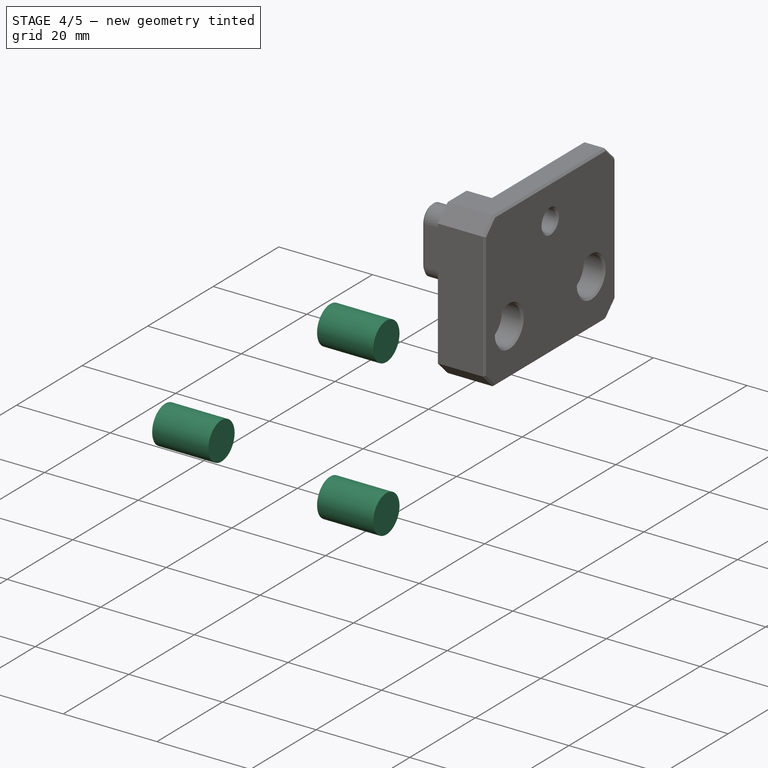
[diagram: stage 4 of 5 — iso view after this stage's code; geometry added in this stage tinted green]
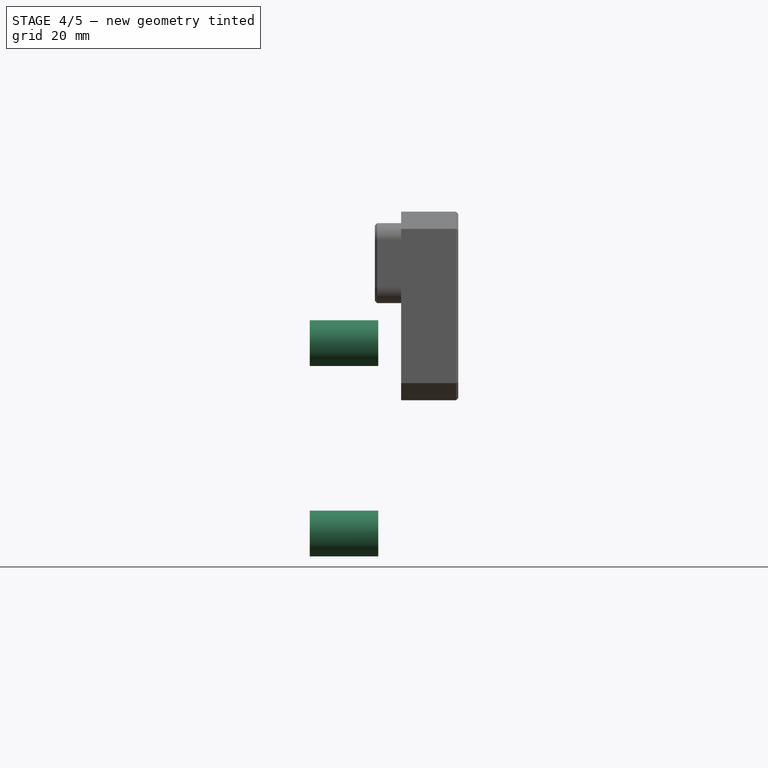
[diagram: stage 4 of 5 — front view after this stage's code; geometry added in this stage tinted green]
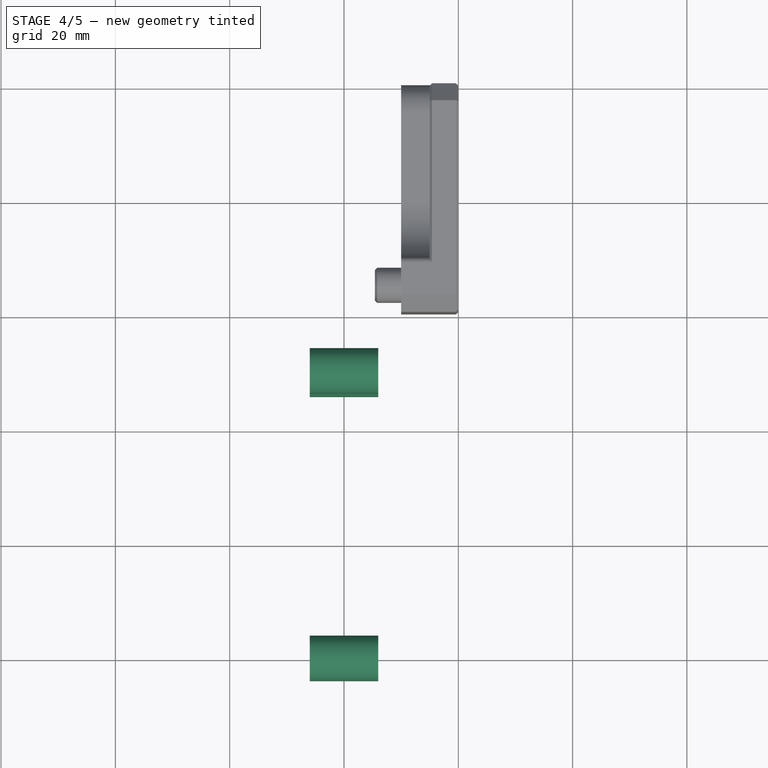
[diagram: stage 4 of 5 — top view after this stage's code; geometry added in this stage tinted green]
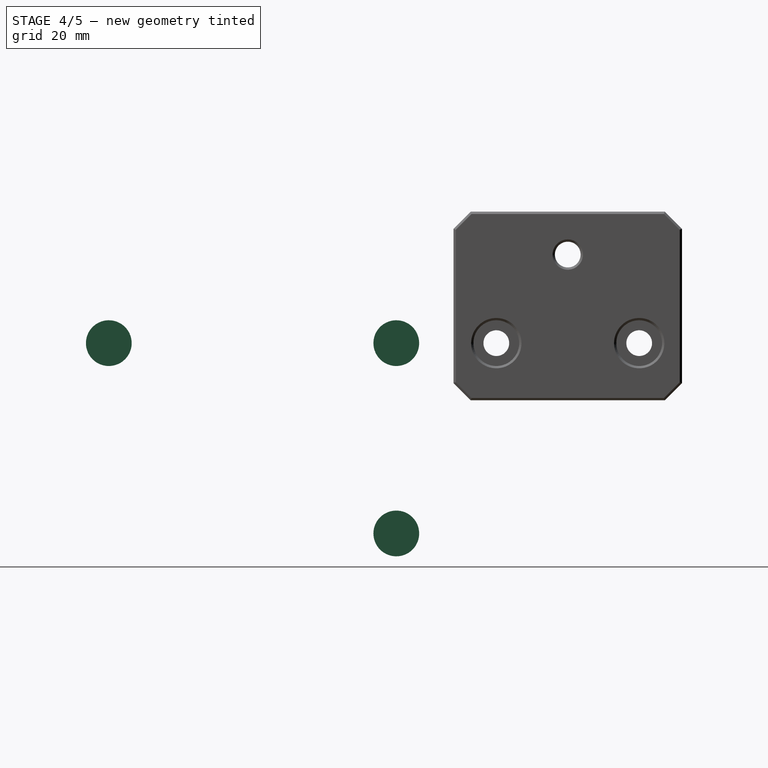
[diagram: stage 4 of 5 — right view after this stage's code; geometry added in this stage tinted green]
FEATURE [Spreadsheet::Sheet] Spreadsheet  label="Variables"
  PythonMode = false
  ShowCells = 0
  TreeRank = 7
  cells = A1=FlangeStack_Width; B1(FlangeStack_Width)==10mm; A2=Flange_Radius_Inner; B2(Flange_Radius_Inner)==13mm; A3=Flange_Radius_Outer; B3(Flange_Radius_Outer)==15mm; A5=Extrusion_To_Rail_Dist; B5(Extrusion_To_Rail_Dist)==13mm; A7=FinishingChamfer; B7(FinishingChamfer)==0.4mm; A8=CornerChamfer; B8(CornerChamfer)==3mm; A10=BearingAxleDia; B10(BearingAxleDia)==5mm; A11=BearingAxleCounterboreDia; B11(BearingAxleCounterboreDia)==9mm; A12=BearingAxleCounterboreDepth; B12(BearingAxleCounterboreDepth)==2mm; A13=BearingAxleDepth; B13(BearingAxleDepth)==18mm
FEATURE [PartDesign::Plane] DatumPlane006  label="BasePlane"
  AttachmentSupport = -> [YZ_Plane006]
  Length = 10
  MapMode = 5
  MinimumLength = 10
  MinimumWidth = 10
  Placement = pos=(0,0,0) rot=(0.57735,0.57735,0.57735;2.0944rad)
  ResizeMode = 0
  Support = -> [YZ_Plane006]
  TreeRank = 167
  Width = 10
FEATURE [PartDesign::Plane] DatumPlane007  label="OuterPlane"
  AttachmentOffset = pos=(0,0,5) rot=(0,0,1;0rad)
  AttachmentSupport = -> [DatumPlane006]
  Length = 10
  MapMode = 5
  MinimumLength = 10
  MinimumWidth = 10
  Placement = pos=(5,-6e-16,6e-16) rot=(0.57735,0.57735,0.57735;2.0944rad)
  ResizeMode = 0
  Support = -> [DatumPlane006]
  TreeRank = 175
  Width = 10
  expr: AttachmentOffset.Base.z = <<Pad_Base001>>.Length
FEATURE [PartDesign::SubShapeBinder] Binder012  label="Binder012(BearingAxis002)"
  BindCopyOnChange = 0
  BindMode = 0
  ClaimChildren = false
  Context = -> Group002 [Group006.Body006.Binder012.]
  FillStyle = 0
  Fuse = false
  MakeFace = true
  OffsetFill = false
  OffsetIntersection = false
  OffsetJoinType = 0
  OffsetOpenResult = false
  PartialLoad = false
  Relative = true
  Support = -> [Export011]
  TreeRank = 177
  _Version = 8
FEATURE [PartDesign::SubShapeBinder] Binder013  label="Binder013(S_MountHoles)"
  BindCopyOnChange = 0
  BindMode = 0
  ClaimChildren = false
  Context = -> Group002 [Group006.Body007.Pad013.Binder013.]
  FillStyle = 0
  Fuse = false
  MakeFace = true
  OffsetFill = false
  OffsetIntersection = false
  OffsetJoinType = 0
  OffsetOpenResult = false
  PartialLoad = false
  Placement = pos=(-2,0,0) rot=(0,0,1;0rad)
  Relative = true
  Support = -> [Body006[Sketch012.]]
  TreeRank = 211
  _Version = 8
  expr: Placement.Base.x = -<<Pocket_MountBraces>>.Length
FEATURE [PartDesign::Pad] Pad013
  ClaimChildren = false
  Direction = (1,1,1)
  Fit = 0
  FitJoin = 0
  InnerFit = 0
  InnerFitJoin = 0
  InnerTaperAngle = 0
  InnerTaperAngleRev = 0
  Length = 12
  Length2 = 100
  Linearize = true
  NewSolid = false
  Placement = pos=(-2,0,0) rot=(0,0,1;0rad)
  Profile = -> Binder013
  Suppress = false
  TreeRank = 212
  Type = 0
  _ProfileBasedVersion = 1
  expr: Length = <<Pocket_MountBraces>>.Length + Spreadsheet.FlangeStack_Width
FEATURE [PartDesign::Pocket] Pocket001  label="Pocket_Nema"
  BaseFeature = -> Pad012
  ClaimChildren = false
  Fit = 0
  FitJoin = 0
  InnerFit = 0
  InnerFitJoin = 0
  InnerTaperAngle = 0
  InnerTaperAngleRev = 0
  Length = 5
  Length2 = 100
  Linearize = true
  NewSolid = false
  Placement = pos=(0,0,0) rot=(0.57735,0.57735,0.57735;2.0944rad)
  Profile = -> Sketch010
  Suppress = false
  TreeRank = 176
  Type = 1
  _ProfileBasedVersion = 1
FEATURE [PartDesign::Hole] Hole008  label="Hole_BearingAxis001"
  BaseFeature = -> Pocket001
  ClaimChildren = false
  CustomThreadClearance = 0
  Depth = 25
  DepthType = 0
  Diameter = 5
  DrillForDepth = false
  DrillPoint = 1
  DrillPointAngle = 118
  Fit = 0
  FitJoin = 0
  HoleCutCountersinkAngle = 90
  HoleCutCustomValues = false
  HoleCutDepth = 2
  HoleCutDiameter = 9
  HoleCutType = 1
  InnerFit = 0
  InnerFitJoin = 0
  ModelThread = false
  NewSolid = false
  Placement = pos=(0,0,0) rot=(0.57735,0.57735,0.57735;2.0944rad)
  Profile = -> Binder012
  Reversed = true
  Suppress = false
  Tapered = false
  TaperedAngle = 90
  ThreadClass = 0
  ThreadDepth = 23.5
  ThreadDepthType = 0
  ThreadDirection = 0
  ThreadFit = 0
  ThreadSize = 0
  ThreadType = 0
  Threaded = false
  TreeRank = 178
  UseCustomThreadClearance = false
  _ProfileBasedVersion = 1
FEATURE [Sketcher::SketchExport] Export013  label="MountHoles003"
  Base = -> Sketch009
  BaseRefs = -> Sketch009 [edge27,edge28,edge26]
  Placement = pos=(0,0,0) rot=(0.57735,0.57735,0.57735;2.0944rad)
  Refs = ;g110.edge27 | ;g111.edge28 | ;g109.edge26
  SyncPlacement = true
  TreeRank = 179
FEATURE [Sketcher::SketchObject] Sketch012  label="S_MountHoles"
  ArcFitTolerance = 1e-06
  AttachmentSupport = -> [DatumPlane007]
  ExternalGeometry = -> [Export013]
  FullyConstrained = true
  MapMode = 5
  Placement = pos=(5,-6e-16,6e-16) rot=(0.57735,0.57735,0.57735;2.0944rad)
  Support = -> [DatumPlane007]
  TreeRank = 180
  sketch-geometry (3):
    g0: Circle CenterX=-60.3 CenterY=10 CenterZ=0 NormalX=0 NormalY=0 NormalZ=1 AngleXU=0 Radius=4
    g1: Circle CenterX=-10 CenterY=10 CenterZ=0 NormalX=0 NormalY=0 NormalZ=1 AngleXU=0 Radius=4
    g2: Circle CenterX=-10 CenterY=-23.3 CenterZ=0 NormalX=0 NormalY=0 NormalZ=1 AngleXU=0 Radius=4
  constraints (6):
    c: Coincident(g0,g-3)
    c: Coincident(g1,g-4)
    c: Coincident(g2,g-5)
    c: Diameter(g2) = 8
    c: Equal(g2,g1)
    c: Equal(g2,g0)
FEATURE [PartDesign::Pocket] Pocket002  label="Pocket_MountBraces"
  BaseFeature = -> Hole008
  ClaimChildren = false
  Fit = 0.5
  FitJoin = 0
  InnerFit = 0
  InnerFitJoin = 0
  InnerTaperAngle = 0
  InnerTaperAngleRev = 0
  Length = 2
  Length2 = 100
  Linearize = true
  NewSolid = false
  Placement = pos=(0,0,0) rot=(0.57735,0.57735,0.57735;2.0944rad)
  Profile = -> Sketch012
  Suppress = false
  TreeRank = 181
  Type = 0
  _ProfileBasedVersion = 1
FEATURE [PartDesign::Hole] Hole009  label="Hole_Mounts001"
  BaseFeature = -> Pocket002
  ClaimChildren = false
  CustomThreadClearance = 0
  Depth = 25
  DepthType = 0
  Diameter = 4.8
  DrillForDepth = false
  DrillPoint = 1
  DrillPointAngle = 118
  Fit = 0
  FitJoin = 0
  HoleCutCountersinkAngle = 90
  HoleCutCustomValues = false
  HoleCutDepth = 0
  HoleCutDiameter = 6.1
  HoleCutType = 0
  InnerFit = 0
  InnerFitJoin = 0
  ModelThread = false
  NewSolid = false
  Placement = pos=(0,0,0) rot=(0.57735,0.57735,0.57735;2.0944rad)
  Profile = -> Sketch012
  Suppress = false
  Tapered = false
  TaperedAngle = 90
  ThreadClass = 0
  ThreadDepth = 25
  ThreadDepthType = 0
  ThreadDirection = 0
  ThreadFit = 2
  ThreadSize = 11
  ThreadType = 1
  Threaded = false
  TreeRank = 182
  UseCustomThreadClearance = false
  _ProfileBasedVersion = 1
FEATURE [PartDesign::Chamfer] Chamfer005  label="Chamfer Corner"
  Angle = 45
  Base = -> Hole009 [Edge1,Edge62,Edge5,Edge65,Edge68,Edge97,Edge90]
  BaseFeature = -> Hole009
  ChamferType = 0
  FlipDirection = false
  NewSolid = false
  Placement = pos=(0,0,0) rot=(0.57735,0.57735,0.57735;2.0944rad)
  Size = 3
  Size2 = 1
  SupportTransform = false
  Suppress = false
  TreeRank = 232
  expr: Size = <<Variables>>.CornerChamfer
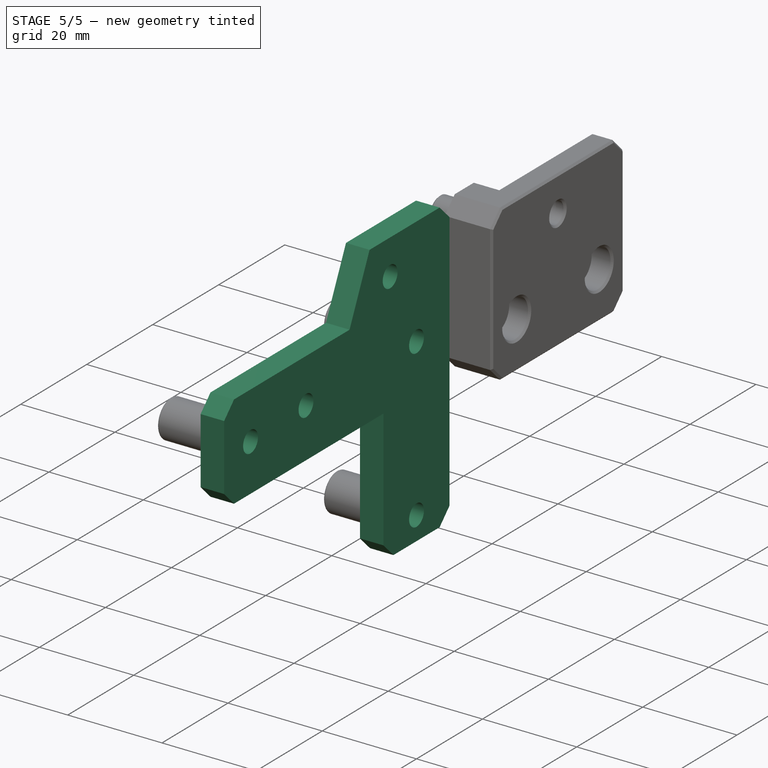
[diagram: stage 5 of 5 — iso view after this stage's code; geometry added in this stage tinted green]
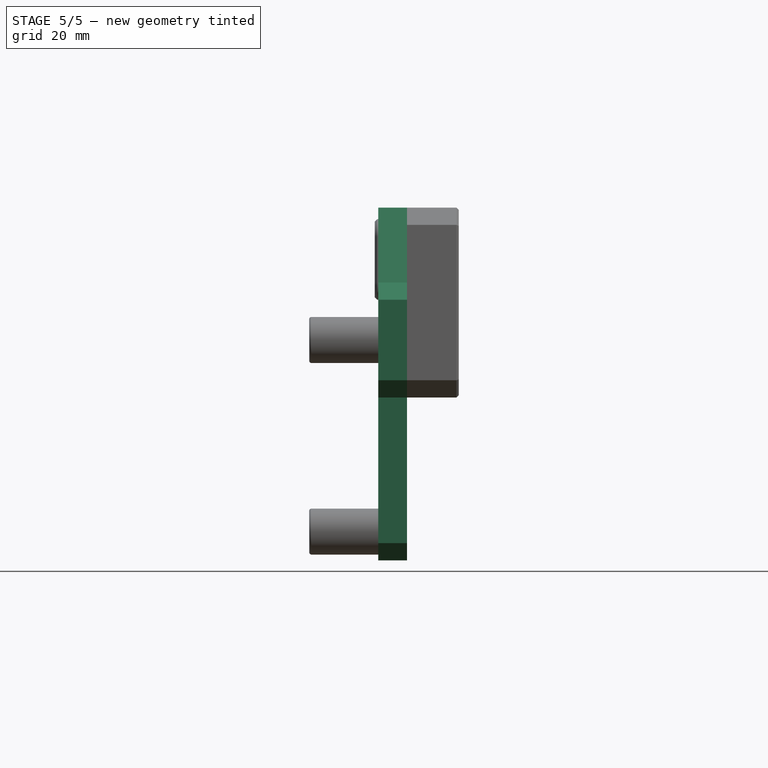
[diagram: stage 5 of 5 — front view after this stage's code; geometry added in this stage tinted green]
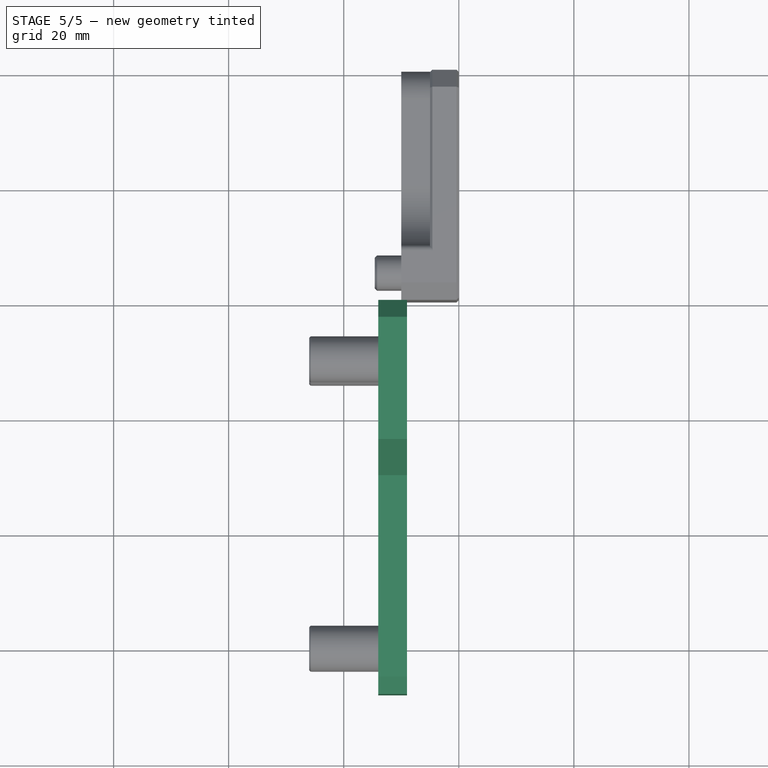
[diagram: stage 5 of 5 — top view after this stage's code; geometry added in this stage tinted green]
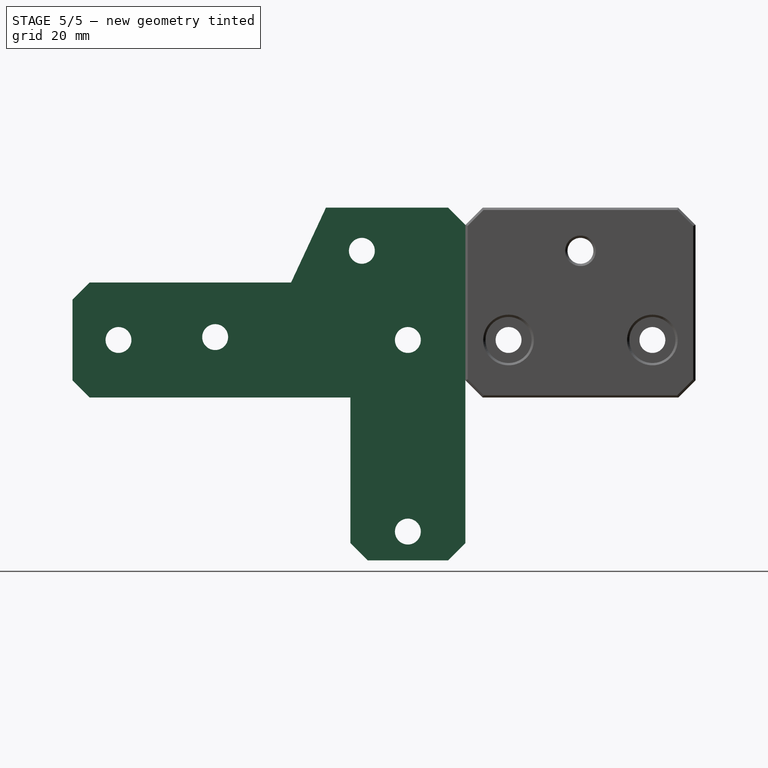
[diagram: stage 5 of 5 — right view after this stage's code; geometry added in this stage tinted green]
FEATURE [Part::SubShapeBinder] Import004  label="Import004(OuterPlane)"
  BindCopyOnChange = 0
  BindMode = 0
  ClaimChildren = false
  Context = -> Group002 [Group006.Body007.Import004.]
  FillStyle = 0
  Fuse = false
  MakeFace = false
  OffsetFill = false
  OffsetIntersection = false
  OffsetJoinType = 0
  OffsetOpenResult = false
  PartialLoad = false
  Relative = true
  Support = -> [Body006[DatumPlane007.]]
  TreeRank = 214
  _Version = 8
FEATURE [PartDesign::Plane] DatumPlane008
  AttachmentOffset = pos=(0,0,10) rot=(0,0,1;0rad)
  AttachmentSupport = -> [Import004]
  Length = 68.3
  MapMode = 5
  MinimumLength = 10
  MinimumWidth = 10
  Placement = pos=(-14,0,-2.7e-15) rot=(0.57735,0.57735,0.57735;2.0944rad)
  ResizeMode = 0
  Support = -> [Import004]
  TreeRank = 213
  Width = 61.3
  expr: AttachmentOffset.Base.z = Spreadsheet.FlangeStack_Width
FEATURE [Sketcher::SketchObject] Sketch013  label="S_OuterPlate"
  ArcFitTolerance = 1e-06
  AttachmentSupport = -> [DatumPlane008]
  FullyConstrained = true
  MapMode = 5
  Placement = pos=(-14,0,-2.7e-15) rot=(0.57735,0.57735,0.57735;2.0944rad)
  Support = -> [DatumPlane008]
  TreeRank = 215
  expr: Constraints[13] = Sketch009.Constraints.StepAngle
  expr: Constraints[14] = Sketch009.Constraints.StepIn
  expr: Constraints[15] = Sketch009.Constraints.Z_Rise
  expr: Constraints[17] = Sketch009.Constraints.Width
  expr: Constraints[18] = Sketch009.Constraints.Z_Drop
  sketch-geometry (10):
    g0: LineSegment StartX=-68.3 StartY=20 StartZ=0 EndX=-68.3 EndY=0 EndZ=0
    g1: LineSegment StartX=-68.3 StartY=0 StartZ=0 EndX=-20 EndY=0 EndZ=0
    g2: LineSegment [constr] StartX=-20 StartY=-48.3 StartZ=0 EndX=0 EndY=-48.3 EndZ=0
    g3: LineSegment StartX=0 StartY=33 StartZ=0 EndX=-24.238 EndY=33 EndZ=0
    g4: LineSegment StartX=-30.3 StartY=20 StartZ=0 EndX=-68.3 EndY=20 EndZ=0
    g5: LineSegment StartX=-30.3 StartY=20 StartZ=0 EndX=-24.238 EndY=33 EndZ=0
    g6: LineSegment [constr] StartX=0 StartY=-48.3 StartZ=0 EndX=0 EndY=-28.3 EndZ=0
    g7: LineSegment StartX=0 StartY=33 StartZ=0 EndX=0 EndY=-28.3 EndZ=0
    g8: LineSegment StartX=-20 StartY=0 StartZ=0 EndX=-20 EndY=-28.3 EndZ=0
    g9: LineSegment StartX=-20 StartY=-28.3 StartZ=0 EndX=0 EndY=-28.3 EndZ=0
  constraints (30):
    c: PointOnObject(g0,g-1)
    c: Vertical(g0)
    c: Coincident(g0,g1)
    c: PointOnObject(g1,g-1)
    c: PointOnObject(g2,g-2)
    c: Horizontal(g2)
    c: PointOnObject(g3,g-2)
    c: Coincident(g4,g0)
    c: Horizontal(g4)
    c: Horizontal(g3)
    c: DistanceX(g2,g2) = 20
    c: Coincident(g5,g4)
    c: Coincident(g5,g3)
    c: Angle(g5,g4) = 2.00713
    c: DistanceX(g0,g4) = 38
    c: DistanceY(g-1,g3) = 33
    c: DistanceY(g0,g0) = 20
    c: DistanceX(g0,g3) = 68.3
    c: DistanceY(g2,g-1) = 48.3
    c: PointOnObject(g6,g-2)
    c: Coincident(g6,g2)
    c: Equal(g6,g2)
    c: Coincident(g7,g3)
    c: Coincident(g8,g1)
    c: Vertical(g8)
    c: Coincident(g9,g8)
    c: Coincident(g9,g7)
    c: Horizontal(g9)
    c: Coincident(g6,g7)
    c: Vertical(g8,g2)
FEATURE [PartDesign::Pad] Pad014
  BaseFeature = -> Pad013
  ClaimChildren = false
  Direction = (1,1,1)
  Fit = 0
  FitJoin = 0
  InnerFit = 0
  InnerFitJoin = 0
  InnerTaperAngle = 0
  InnerTaperAngleRev = 0
  Length = 5
  Length2 = 100
  Linearize = true
  NewSolid = false
  Placement = pos=(-2,0,0) rot=(0,0,1;0rad)
  Profile = -> Sketch013
  Suppress = false
  TreeRank = 216
  Type = 0
  _ProfileBasedVersion = 1
FEATURE [PartDesign::SubShapeBinder] Binder014  label="Binder014(BearingAxis002)"
  BindCopyOnChange = 0
  BindMode = 0
  ClaimChildren = false
  Context = -> Group002 [Group006.Body007.Hole011.Binder014.]
  FillStyle = 0
  Fuse = false
  MakeFace = true
  OffsetFill = false
  OffsetIntersection = false
  OffsetJoinType = 0
  OffsetOpenResult = false
  PartialLoad = false
  Relative = true
  Support = -> [Export011]
  TreeRank = 217
  _Version = 8
FEATURE [PartDesign::Hole] Hole010  label="Hole_AxleRecess"
  BaseFeature = -> Pad014
  ClaimChildren = false
  CustomThreadClearance = 0
  Depth = 16
  DepthType = 0
  Diameter = 5
  DrillForDepth = false
  DrillPoint = 0
  DrillPointAngle = 118
  Fit = 0
  FitJoin = 0
  HoleCutCountersinkAngle = 90
  HoleCutCustomValues = false
  HoleCutDepth = 0
  HoleCutDiameter = 6.1
  HoleCutType = 0
  InnerFit = 0
  InnerFitJoin = 0
  ModelThread = false
  NewSolid = false
  Placement = pos=(-2,0,0) rot=(0,0,1;0rad)
  Profile = -> Binder014
  Reversed = true
  Suppress = false
  Tapered = false
  TaperedAngle = 90
  ThreadClass = 0
  ThreadDepth = 16.5
  ThreadDepthType = 0
  ThreadDirection = 0
  ThreadFit = 0
  ThreadSize = 0
  ThreadType = 0
  Threaded = false
  TreeRank = 218
  UseCustomThreadClearance = false
  _ProfileBasedVersion = 1
  expr: Diameter = <<Hole_BearingAxis001>>.Diameter
FEATURE [PartDesign::Hole] Hole011  label="Hole_AxleBinder"
  BaseFeature = -> Hole010
  ClaimChildren = false
  CustomThreadClearance = 0
  Depth = 25
  DepthType = 1
  Diameter = 4.5
  DrillForDepth = false
  DrillPoint = 1
  DrillPointAngle = 118
  Fit = 0
  FitJoin = 0
  HoleCutCountersinkAngle = 90
  HoleCutCustomValues = false
  HoleCutDepth = 0
  HoleCutDiameter = 6.1
  HoleCutType = 0
  InnerFit = 0
  InnerFitJoin = 0
  ModelThread = false
  NewSolid = false
  Placement = pos=(-2,0,0) rot=(0,0,1;0rad)
  Profile = -> Binder014
  Reversed = true
  Suppress = false
  Tapered = false
  TaperedAngle = 90
  ThreadClass = 0
  ThreadDepth = 194.088
  ThreadDepthType = 0
  ThreadDirection = 0
  ThreadFit = 0
  ThreadSize = 11
  ThreadType = 1
  Threaded = false
  TreeRank = 219
  UseCustomThreadClearance = false
  _ProfileBasedVersion = 1
FEATURE [PartDesign::SubShapeBinder] Binder015  label="Binder015(S_MountHoles)"
  BindCopyOnChange = 0
  BindMode = 0
  ClaimChildren = false
  Context = -> Group002 [Group006.Body007.Binder015.]
  FillStyle = 0
  Fuse = false
  MakeFace = true
  OffsetFill = false
  OffsetIntersection = false
  OffsetJoinType = 0
  OffsetOpenResult = false
  PartialLoad = false
  Placement = pos=(-2,0,0) rot=(0,0,1;0rad)
  Relative = true
  Support = -> [Body006[Sketch012.]]
  TreeRank = 220
  _Version = 8
  expr: Placement.Base.x = -<<Pocket_MountBraces>>.Length
FEATURE [PartDesign::Hole] Hole012
  BaseFeature = -> Hole011
  ClaimChildren = false
  CustomThreadClearance = 0
  Depth = 25
  DepthType = 1
  Diameter = 4.5
  DrillForDepth = false
  DrillPoint = 1
  DrillPointAngle = 118
  Fit = 0
  FitJoin = 0
  HoleCutCountersinkAngle = 90
  HoleCutCustomValues = false
  HoleCutDepth = 0
  HoleCutDiameter = 6.1
  HoleCutType = 0
  InnerFit = 0
  InnerFitJoin = 0
  ModelThread = false
  NewSolid = false
  Placement = pos=(-2,0,0) rot=(0,0,1;0rad)
  Profile = -> Binder015
  Reversed = true
  Suppress = false
  Tapered = false
  TaperedAngle = 90
  ThreadClass = 0
  ThreadDepth = 188.538
  ThreadDepthType = 0
  ThreadDirection = 0
  ThreadFit = 0
  ThreadSize = 11
  ThreadType = 1
  Threaded = false
  TreeRank = 221
  UseCustomThreadClearance = false
  _ProfileBasedVersion = 1
FEATURE [PartDesign::Fillet] Fillet  label="Fillet_Supports"
  Base = -> Hole012 [Edge44,Edge36,Edge38]
  BaseFeature = -> Hole012
  NewSolid = false
  Placement = pos=(-2,0,0) rot=(0,0,1;0rad)
  Radius = 0.4
  SupportTransform = false
  Suppress = false
  TreeRank = 222
FEATURE [PartDesign::Chamfer] Chamfer007  label="Chamfer_Corners"
  Angle = 45
  Base = -> Fillet [Edge20,Edge24,Edge32,Edge26,Edge30]
  BaseFeature = -> Fillet
  ChamferType = 0
  FlipDirection = false
  NewSolid = false
  Placement = pos=(-2,0,0) rot=(0,0,1;0rad)
  Size = 3
  Size2 = 1
  SupportTransform = false
  Suppress = false
  TreeRank = 234
  expr: Size = <<Variables>>.CornerChamfer
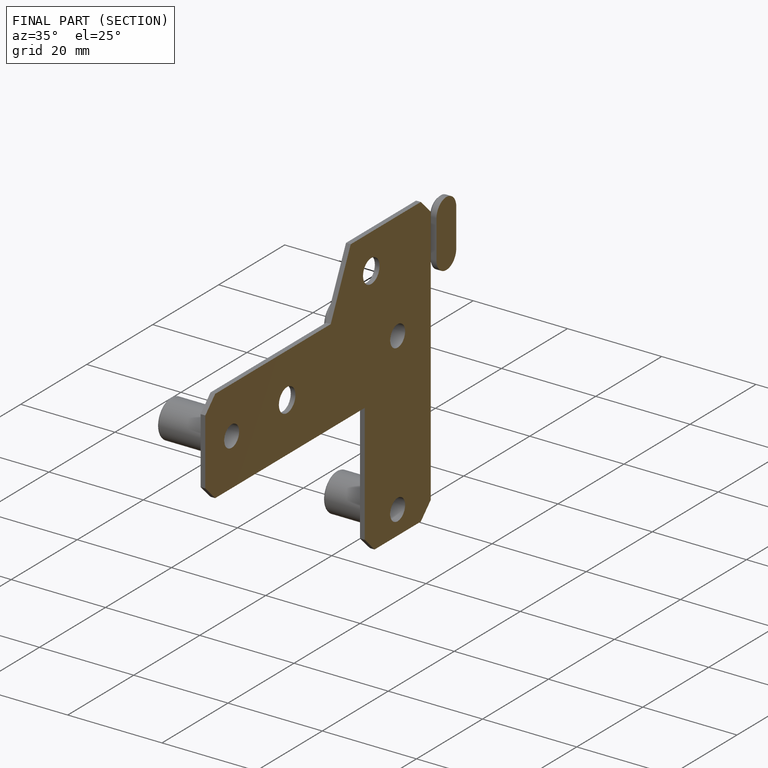
[diagram: finished part — half-section view (interior)]
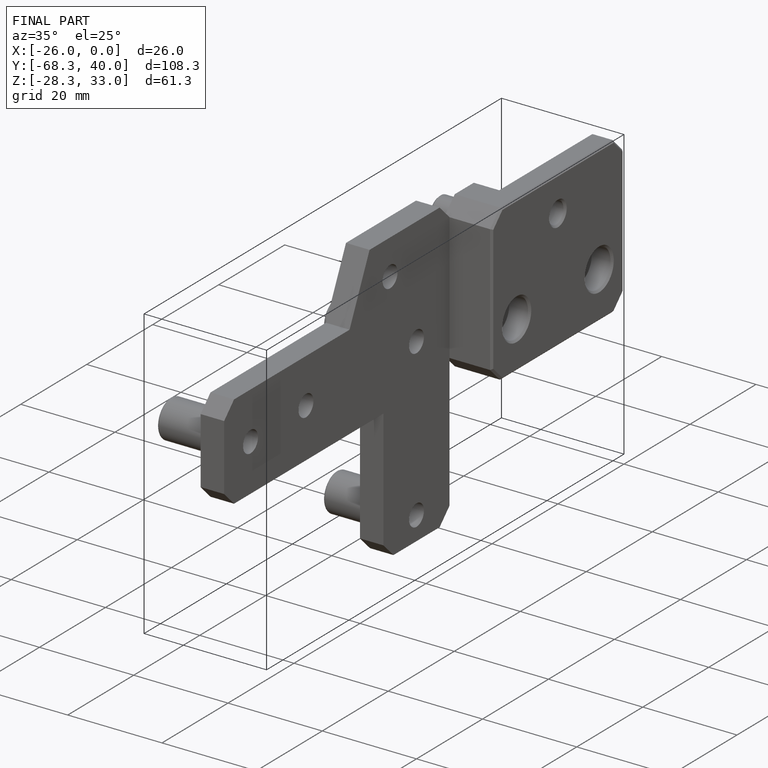
[diagram: finished part — iso view with bounding-box wireframe]
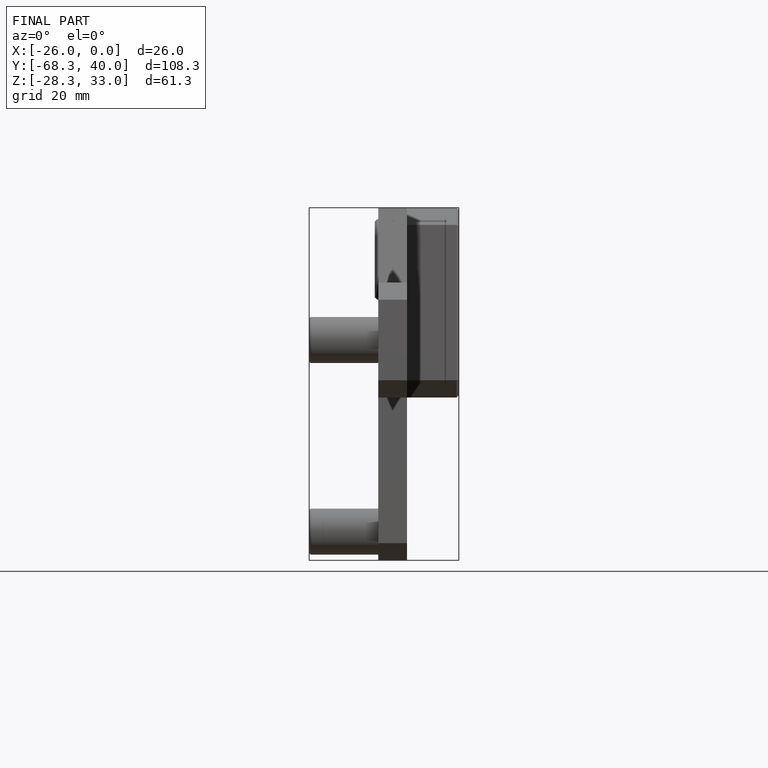
[diagram: finished part — front view with bounding-box wireframe]
